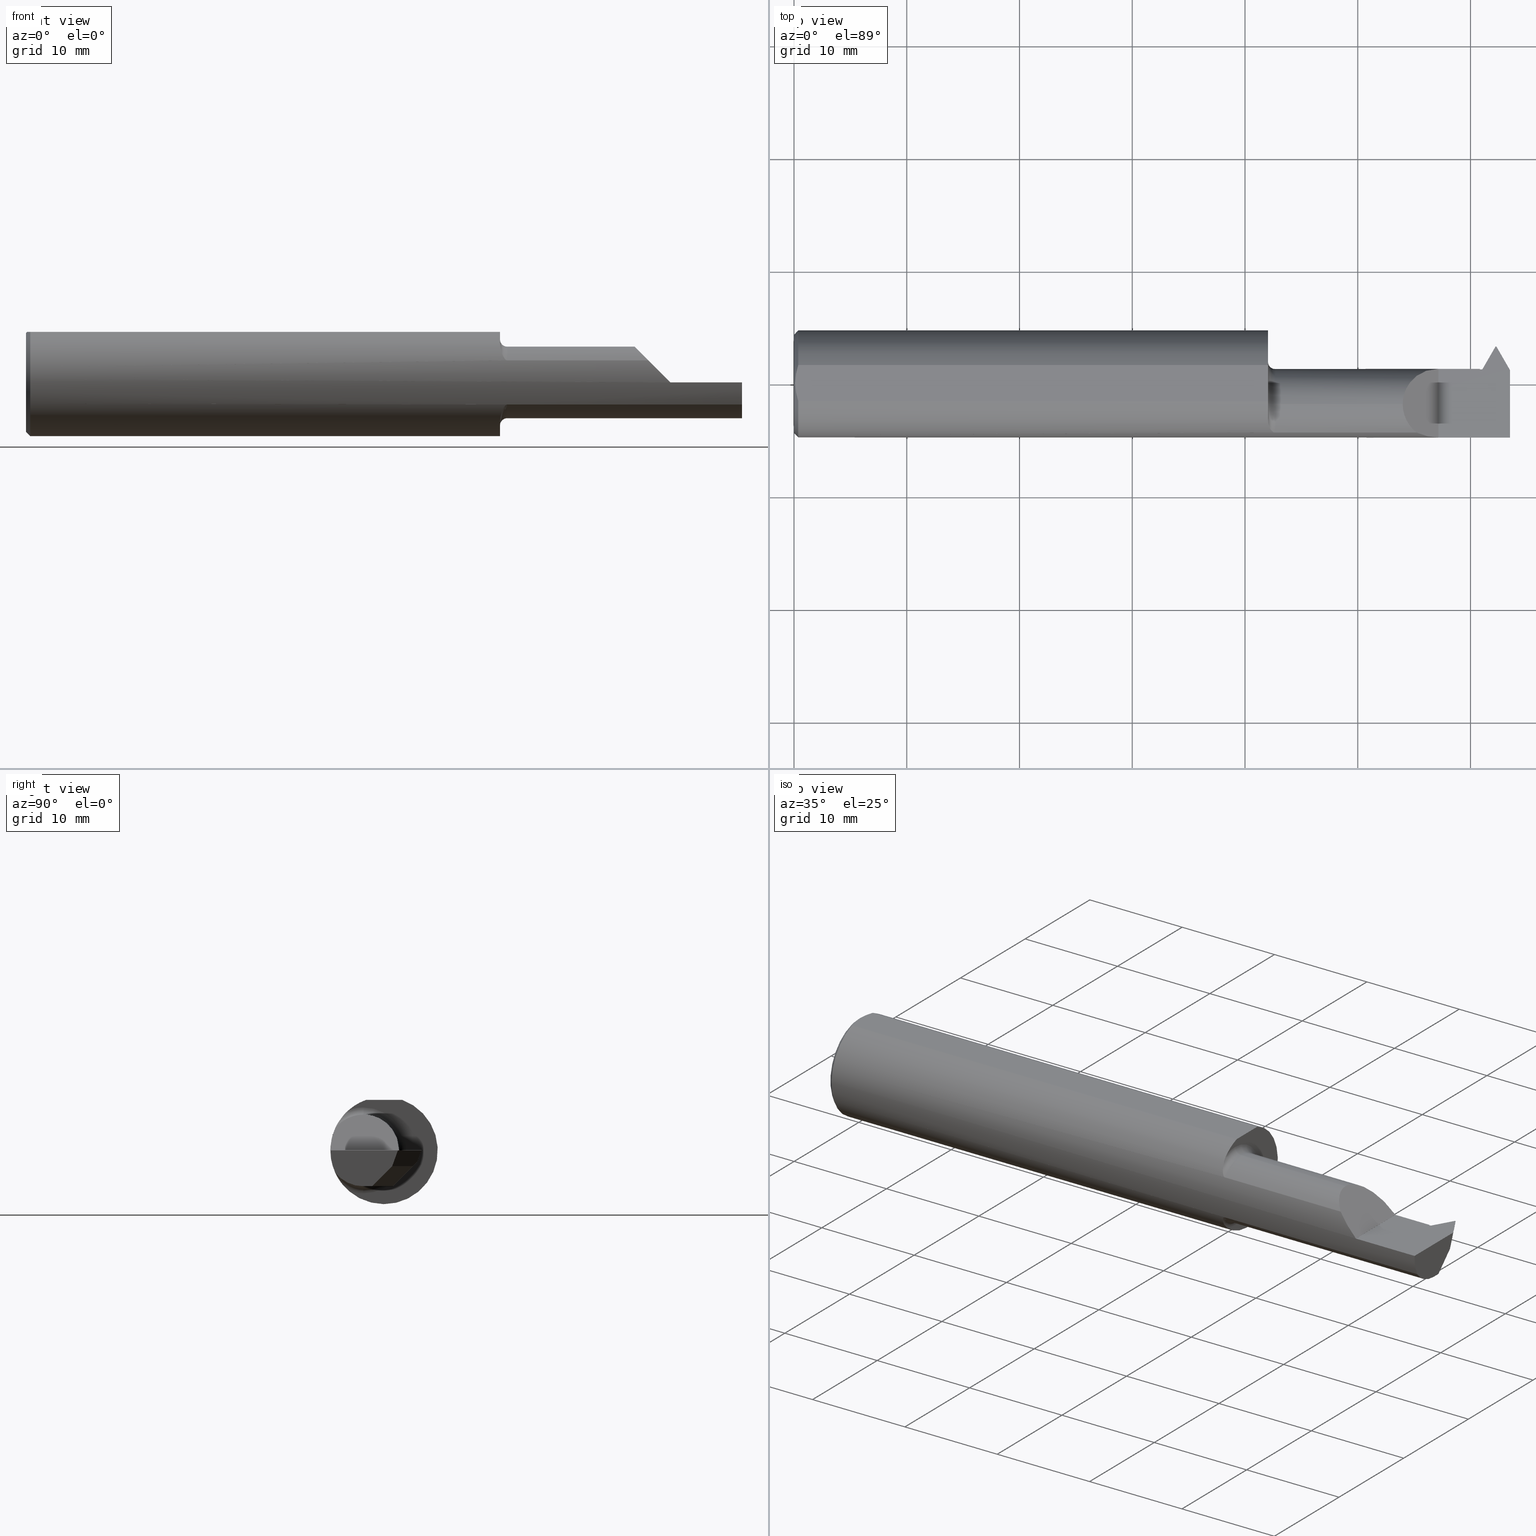
[diagram: canonical four-view strip — front | top / right | iso, engineering-drawing reading convention]
A machine part, canonical four-view strip (front | top / right | iso — engineering-drawing reading convention). The complete STEP part file that produces these views, byte-faithful:
ISO-10303-21;
HEADER;
FILE_DESCRIPTION (( 'STEP AP203' ),
    '1' );
FILE_NAME ('230412-TT320750.STEP',
    '2025-04-22T22:41:32',
    ( '' ),
    ( '' ),
    'SwSTEP 2.0',
    'SolidWorks 2024',
    '' );
FILE_SCHEMA (( 'CONFIG_CONTROL_DESIGN' ));
ENDSEC;

DATA;
#1 = CARTESIAN_POINT ( 'NONE',  ( 2.142479785539520787, -0.1466433954276125384, 0.1078702144604786056 ) ) ;
#2 = ADVANCED_FACE ( 'NONE', ( #607 ), #755, .T. ) ;
#3 = CARTESIAN_POINT ( 'NONE',  ( 1.680000000000000160, -0.07234999999999998377, 0.000000000000000000 ) ) ;
#4 = DIRECTION ( 'NONE',  ( -0.5000000000000038858, 0.000000000000000000, -0.8660254037844362651 ) ) ;
#5 = CARTESIAN_POINT ( 'NONE',  ( 2.443918426406540334, 0.1010911906293536638, -0.05499999999999957007 ) ) ;
#6 = CARTESIAN_POINT ( 'NONE',  ( 0.01155577088586097305, 0.05304926503900153634, 0.1763499999999999512 ) ) ;
#7 = DIRECTION ( 'NONE',  ( 0.000000000000000000, -1.000000000000000000, 0.000000000000000000 ) ) ;
#8 = DIRECTION ( 'NONE',  ( 0.000000000000000000, 0.000000000000000000, 1.000000000000000000 ) ) ;
#9 = CARTESIAN_POINT ( 'NONE',  ( 2.409370448767462314, 0.03851830851078916901, -0.05773402954892806194 ) ) ;
#10 = AXIS2_PLACEMENT_3D ( 'NONE', #221, #743, #160 ) ;
#11 = VECTOR ( 'NONE', #317, 39.37007874015748143 ) ;
#12 = DIRECTION ( 'NONE',  ( 0.5000000000000014433, -0.8660254037844377084, 0.000000000000000000 ) ) ;
#13 = EDGE_CURVE ( 'NONE', #139, #17, #613, .T. ) ;
#14 = ORIENTED_EDGE ( 'NONE', *, *, #167, .T. ) ;
#15 = CARTESIAN_POINT ( 'NONE',  ( 2.403311978464830023, 0.05064999999999998670, 0.000000000000000000 ) ) ;
#16 = CARTESIAN_POINT ( 'NONE',  ( 2.451000000000000068, 0.1332480762113532613, 0.000000000000000000 ) ) ;
#17 = VERTEX_POINT ( 'NONE', #983 ) ;
#18 = VERTEX_POINT ( 'NONE', #902 ) ;
#19 = EDGE_CURVE ( 'NONE', #954, #35, #969, .T. ) ;
#20 = CARTESIAN_POINT ( 'NONE',  ( 0.01500000000000079048, -0.06325108694718213631, 0.1763499999999999790 ) ) ;
#21 = DIRECTION ( 'NONE',  ( -0.000000000000000000, 0.000000000000000000, 1.000000000000000000 ) ) ;
#22 = ORIENTED_EDGE ( 'NONE', *, *, #360, .T. ) ;
#23 = ORIENTED_EDGE ( 'NONE', *, *, #50, .T. ) ;
#24 = CYLINDRICAL_SURFACE ( 'NONE', #946, 0.1873499999999999888 ) ;
#25 = CARTESIAN_POINT ( 'NONE',  ( 2.250000000000000000, -0.1873499999999999610, -6.429183357567478880E-17 ) ) ;
#26 = VECTOR ( 'NONE', #257, 39.37007874015748854 ) ;
#27 = AXIS2_PLACEMENT_3D ( 'NONE', #449, #535, #841 ) ;
#28 = PRODUCT_DEFINITION_FORMATION_WITH_SPECIFIED_SOURCE ( 'ANY', '', #292, .NOT_KNOWN. ) ;
#29 = ORIENTED_EDGE ( 'NONE', *, *, #660, .T. ) ;
#30 = AXIS2_PLACEMENT_3D ( 'NONE', #48, #417, #630 ) ;
#31 = DIRECTION ( 'NONE',  ( 0.000000000000000000, 0.000000000000000000, 1.000000000000000000 ) ) ;
#32 = DIRECTION ( 'NONE',  ( 1.000000000000000000, -0.000000000000000000, -0.000000000000000000 ) ) ;
#33 = EDGE_CURVE ( 'NONE', #105, #858, #958, .T. ) ;
#34 = CARTESIAN_POINT ( 'NONE',  ( 1.672402770576354669, -0.1687580686002391195, 0.08138221229323114314 ) ) ;
#35 = VERTEX_POINT ( 'NONE', #619 ) ;
#36 = ORIENTED_EDGE ( 'NONE', *, *, #197, .T. ) ;
#37 = DIRECTION ( 'NONE',  ( 0.000000000000000000, 0.000000000000000000, -1.000000000000000000 ) ) ;
#38 = DIRECTION ( 'NONE',  ( -1.000000000000000000, 6.098501035665834701E-15, 0.000000000000000000 ) ) ;
#39 = EDGE_CURVE ( 'NONE', #873, #972, #448, .T. ) ;
#40 = EDGE_LOOP ( 'NONE', ( #573, #963, #199, #263 ) ) ;
#41 = DIRECTION ( 'NONE',  ( 0.000000000000000000, 0.000000000000000000, -1.000000000000000000 ) ) ;
#42 = CARTESIAN_POINT ( 'NONE',  ( 1.678119196786478584, -0.1707639599170699130, 0.07706940050007769771 ) ) ;
#43 = ORIENTED_EDGE ( 'NONE', *, *, #346, .T. ) ;
#44 = VECTOR ( 'NONE', #938, 39.37007874015748143 ) ;
#45 = EDGE_CURVE ( 'NONE', #379, #492, #169, .T. ) ;
#46 = CC_DESIGN_APPROVAL ( #192, ( #295 ) ) ;
#47 = PLANE ( 'NONE',  #365 ) ;
#48 = CARTESIAN_POINT ( 'NONE',  ( 0.01500000000000079568, 0.000000000000000000, 0.000000000000000000 ) ) ;
#49 = ORIENTED_EDGE ( 'NONE', *, *, #173, .F. ) ;
#50 = EDGE_CURVE ( 'NONE', #661, #873, #680, .T. ) ;
#51 = CARTESIAN_POINT ( 'NONE',  ( 2.518819254367519633, -0.7177720014826116657, -1.003595231669350607 ) ) ;
#52 = APPROVAL_DATE_TIME ( #816, #555 ) ;
#53 = ORIENTED_EDGE ( 'NONE', *, *, #636, .T. ) ;
#54 = CARTESIAN_POINT ( 'NONE',  ( 2.385548931050876842, 0.04119893105087687329, -0.05226509597430407938 ) ) ;
#55 = EDGE_CURVE ( 'NONE', #271, #661, #456, .T. ) ;
#56 = ORIENTED_EDGE ( 'NONE', *, *, #844, .F. ) ;
#57 = AXIS2_PLACEMENT_3D ( 'NONE', #814, #236, #380 ) ;
#58 = ORIENTED_EDGE ( 'NONE', *, *, #590, .T. ) ;
#59 = FACE_OUTER_BOUND ( 'NONE', #251, .T. ) ;
#60 = DATE_AND_TIME ( #956, #182 ) ;
#61 = EDGE_CURVE ( 'NONE', #379, #255, #528, .T. ) ;
#62 = EDGE_LOOP ( 'NONE', ( #326, #336, #568, #502, #22 ) ) ;
#63 = LINE ( 'NONE', #812, #677 ) ;
#64 = ORIENTED_EDGE ( 'NONE', *, *, #19, .F. ) ;
#65 = CARTESIAN_POINT ( 'NONE',  ( 2.223443328839086242, -0.1873000608423838198, 0.02690667116091345970 ) ) ;
#66 = DATE_AND_TIME ( #886, #601 ) ;
#67 = EDGE_CURVE ( 'NONE', #513, #637, #572, .T. ) ;
#68 = CARTESIAN_POINT ( 'NONE',  ( 2.413734622005796027, 0.008361908784097661293, -0.09544939905744566355 ) ) ;
#69 = LINE ( 'NONE', #466, #724 ) ;
#70 = ORIENTED_EDGE ( 'NONE', *, *, #795, .F. ) ;
#71 = DIRECTION ( 'NONE',  ( -1.000000000000000000, 0.000000000000000000, 0.000000000000000000 ) ) ;
#72 = DIRECTION ( 'NONE',  ( -1.000000000000000000, -0.000000000000000000, -0.000000000000000000 ) ) ;
#73 = CARTESIAN_POINT ( 'NONE',  ( 2.451000000000000068, 0.1133568358907640350, -0.05500000000000006967 ) ) ;
#74 = CARTESIAN_POINT ( 'NONE',  ( 2.449500000000000899, 0.1306500000000008765, -6.429183357567480113E-17 ) ) ;
#75 = ADVANCED_FACE ( 'NONE', ( #760 ), #908, .T. ) ;
#76 = CARTESIAN_POINT ( 'NONE',  ( 1.655000000000000249, -0.07234999999999998377, 0.000000000000000000 ) ) ;
#77 = AXIS2_PLACEMENT_3D ( 'NONE', #921, #395, #21 ) ;
#78 = CARTESIAN_POINT ( 'NONE',  ( 1.655000000000000249, 0.000000000000000000, 0.000000000000000000 ) ) ;
#79 = AXIS2_PLACEMENT_3D ( 'NONE', #828, #739, #157 ) ;
#80 = CARTESIAN_POINT ( 'NONE',  ( 1.676412728618681180, -0.1703887611576448968, -0.07790427710188339849 ) ) ;
#81 = EDGE_CURVE ( 'NONE', #171, #637, #364, .T. ) ;
#82 = PLANE ( 'NONE',  #224 ) ;
#83 = CARTESIAN_POINT ( 'NONE',  ( 2.452750694374653317, 0.06227282877551456458, -0.1878647339454660448 ) ) ;
#84 = DIRECTION ( 'NONE',  ( 1.000000000000000000, 0.000000000000000000, 0.000000000000000000 ) ) ;
#85 = DIRECTION ( 'NONE',  ( -1.000000000000000000, -0.000000000000000000, -0.000000000000000000 ) ) ;
#86 = FACE_OUTER_BOUND ( 'NONE', #101, .T. ) ;
#87 = EDGE_CURVE ( 'NONE', #822, #957, #838, .T. ) ;
#88 = CARTESIAN_POINT ( 'NONE',  ( 2.411507999980803341, -0.007106926527362874245, -0.1070616118923673199 ) ) ;
#89 = ORIENTED_EDGE ( 'NONE', *, *, #879, .T. ) ;
#90 = ORIENTED_EDGE ( 'NONE', *, *, #338, .T. ) ;
#91 = DIRECTION ( 'NONE',  ( -1.000000000000000000, -0.000000000000000000, -0.000000000000000000 ) ) ;
#92 = CONICAL_SURFACE ( 'NONE', #424, 0.1873499999999999888, 0.7853981633974437271 ) ;
#93 = DIRECTION ( 'NONE',  ( 0.000000000000000000, 0.000000000000000000, -1.000000000000000000 ) ) ;
#94 = AXIS2_PLACEMENT_3D ( 'NONE', #76, #298, #761 ) ;
#95 = AXIS2_PLACEMENT_3D ( 'NONE', #667, #971, #301 ) ;
#96 = EDGE_CURVE ( 'NONE', #632, #786, #684, .T. ) ;
#97 = ORIENTED_EDGE ( 'NONE', *, *, #201, .T. ) ;
#98 = ORIENTED_EDGE ( 'NONE', *, *, #730, .T. ) ;
#99 = DIRECTION ( 'NONE',  ( 0.000000000000000000, 0.000000000000000000, 1.000000000000000000 ) ) ;
#100 = CARTESIAN_POINT ( 'NONE',  ( 2.250000000000000000, 0.05264950999903971612, 0.0003499999999991848933 ) ) ;
#101 = EDGE_LOOP ( 'NONE', ( #577, #90, #29, #363 ) ) ;
#102 = PLANE ( 'NONE',  #323 ) ;
#103 = CARTESIAN_POINT ( 'NONE',  ( 2.390128570000002117, 0.1160911906293539825, -0.03999999999999936939 ) ) ;
#104 = LENGTH_MEASURE_WITH_UNIT ( LENGTH_MEASURE( 0.02539999999999999897 ), #780 );
#105 = VERTEX_POINT ( 'NONE', #306 ) ;
#106 = ADVANCED_FACE ( 'NONE', ( #86 ), #825, .F. ) ;
#107 = DIRECTION ( 'NONE',  ( 0.000000000000000000, 0.000000000000000000, -1.000000000000000000 ) ) ;
#108 = LINE ( 'NONE', #103, #44 ) ;
#109 = AXIS2_PLACEMENT_3D ( 'NONE', #827, #84, #156 ) ;
#110 = MANIFOLD_SOLID_BREP ( 'Cut-Sweep1', #207 ) ;
#111 = AXIS2_PLACEMENT_3D ( 'NONE', #925, #247, #31 ) ;
#112 = LOCAL_TIME ( 15, 41, 32.00000000000000000, #133 ) ;
#113 = EDGE_LOOP ( 'NONE', ( #797, #36, #813, #918, #196, #880, #924, #245, #787, #713, #352, #694, #854 ) ) ;
#114 = ORIENTED_EDGE ( 'NONE', *, *, #39, .F. ) ;
#115 = PERSON ( 'UNSPECIFIED', 'UNSPECIFIED', 'UNSPECIFIED', ('UNSPECIFIED'), ('UNSPECIFIED'), ('UNSPECIFIED') ) ;
#116 = CC_DESIGN_PERSON_AND_ORGANIZATION_ASSIGNMENT ( #655, #598, ( #28 ) ) ;
#117 = CARTESIAN_POINT ( 'NONE',  ( 2.408768555666735978, 0.04119893105087686636, -0.05226509597430411408 ) ) ;
#118 = PLANE ( 'NONE',  #774 ) ;
#119 = VERTEX_POINT ( 'NONE', #381 ) ;
#120 = DIRECTION ( 'NONE',  ( 0.000000000000000000, 0.000000000000000000, 1.000000000000000000 ) ) ;
#121 = DIRECTION ( 'NONE',  ( 0.9947640934854952155, 0.01818544582510275842, 0.1005668328631428854 ) ) ;
#122 = EDGE_CURVE ( 'NONE', #726, #139, #609, .T. ) ;
#123 = EDGE_LOOP ( 'NONE', ( #152, #516, #643, #557, #462, #549, #213, #170, #439, #646, #359, #206, #281, #297 ) ) ;
#124 = DIRECTION ( 'NONE',  ( 0.000000000000000000, 0.000000000000000000, 1.000000000000000000 ) ) ;
#125 = CARTESIAN_POINT ( 'NONE',  ( 1.663471533398396041, -0.1602710687746327634, 0.09725558226055719402 ) ) ;
#126 = ORIENTED_EDGE ( 'NONE', *, *, #538, .T. ) ;
#127 = CIRCLE ( 'NONE', #532, 0.1250000000000000000 ) ;
#128 = AXIS2_PLACEMENT_3D ( 'NONE', #698, #976, #541 ) ;
#129 = CARTESIAN_POINT ( 'NONE',  ( 2.409054084941633977, -0.01574417682531606411, -0.1114485566650211257 ) ) ;
#130 = EDGE_LOOP ( 'NONE', ( #97, #740 ) ) ;
#131 = EDGE_CURVE ( 'NONE', #105, #35, #237, .T. ) ;
#132 = CARTESIAN_POINT ( 'NONE',  ( 2.452553377633872156, 0.1160911906293534690, -0.03999999999999984818 ) ) ;
#133 = COORDINATED_UNIVERSAL_TIME_OFFSET ( 8, 0, .BEHIND. ) ;
#134 = ORIENTED_EDGE ( 'NONE', *, *, #913, .F. ) ;
#135 = PRODUCT_DEFINITION_SHAPE ( 'NONE', 'NONE',  #295 ) ;
#136 = ADVANCED_BREP_SHAPE_REPRESENTATION ( '230412-TT320750', ( #110, #947 ), #901 ) ;
#137 = APPLICATION_CONTEXT ( 'configuration controlled 3d designs of mechanical parts and assemblies' ) ;
#138 = ADVANCED_FACE ( 'NONE', ( #981 ), #389, .T. ) ;
#139 = VERTEX_POINT ( 'NONE', #599 ) ;
#140 = DIRECTION ( 'NONE',  ( -1.000000000000000000, -0.000000000000000000, -0.000000000000000000 ) ) ;
#141 = PERSON_AND_ORGANIZATION_ROLE ( 'creator' ) ;
#142 = ORIENTED_EDGE ( 'NONE', *, *, #907, .F. ) ;
#143 = DIRECTION ( 'NONE',  ( 0.000000000000000000, -1.000000000000000000, 0.000000000000000000 ) ) ;
#144 = VECTOR ( 'NONE', #776, 39.37007874015748143 ) ;
#145 = CIRCLE ( 'NONE', #394, 0.1499999999999999944 ) ;
#146 = ORIENTED_EDGE ( 'NONE', *, *, #716, .F. ) ;
#147 = CARTESIAN_POINT ( 'NONE',  ( 1.680000000000000160, -0.07234999999999998377, 0.000000000000000000 ) ) ;
#148 = PRODUCT_RELATED_PRODUCT_CATEGORY ( 'detail', '', ( #292 ) ) ;
#149 = DIRECTION ( 'NONE',  ( -0.7071067811865481278, 0.000000000000000000, -0.7071067811865470176 ) ) ;
#150 = VERTEX_POINT ( 'NONE', #530 ) ;
#151 = CARTESIAN_POINT ( 'NONE',  ( 2.500000000000000000, 0.04278184266129586577, -0.01547243479515399492 ) ) ;
#152 = ORIENTED_EDGE ( 'NONE', *, *, #131, .F. ) ;
#153 = DIRECTION ( 'NONE',  ( -1.000000000000000000, -0.000000000000000000, -0.000000000000000000 ) ) ;
#154 = SECURITY_CLASSIFICATION_LEVEL ( 'unclassified' ) ;
#155 = EDGE_CURVE ( 'NONE', #615, #370, #764, .T. ) ;
#156 = DIRECTION ( 'NONE',  ( 0.000000000000000000, 0.000000000000000000, -1.000000000000000000 ) ) ;
#157 = DIRECTION ( 'NONE',  ( 0.000000000000000000, 0.000000000000000000, -1.000000000000000000 ) ) ;
#158 = UNCERTAINTY_MEASURE_WITH_UNIT (LENGTH_MEASURE( 1.000000000000000082E-05 ), #703, 'distance_accuracy_value', 'NONE');
#159 = CARTESIAN_POINT ( 'NONE',  ( 2.500000000000000000, 0.2999999999999999889, -6.429183357567480113E-17 ) ) ;
#160 = DIRECTION ( 'NONE',  ( 0.000000000000000000, 0.000000000000000000, -1.000000000000000000 ) ) ;
#161 = CARTESIAN_POINT ( 'NONE',  ( 2.451000000000000068, 0.1133568358907640350, -0.05500000000000006967 ) ) ;
#162 = AXIS2_PLACEMENT_3D ( 'NONE', #405, #415, #714 ) ;
#163 = LINE ( 'NONE', #159, #356 ) ;
#164 = VECTOR ( 'NONE', #337, 39.37007874015748854 ) ;
#165 = CIRCLE ( 'NONE', #931, 0.02500000000000000486 ) ;
#166 = DIRECTION ( 'NONE',  ( -0.5000000000000000000, -0.8660254037844385966, 1.952272811260131938E-16 ) ) ;
#167 = EDGE_CURVE ( 'NONE', #726, #461, #571, .T. ) ;
#168 = DIRECTION ( 'NONE',  ( -0.000000000000000000, 1.000000000000000000, -0.000000000000000000 ) ) ;
#169 = LINE ( 'NONE', #765, #550 ) ;
#170 = ORIENTED_EDGE ( 'NONE', *, *, #744, .F. ) ;
#171 = VERTEX_POINT ( 'NONE', #759 ) ;
#172 = LINE ( 'NONE', #193, #982 ) ;
#173 = EDGE_CURVE ( 'NONE', #876, #492, #375, .T. ) ;
#174 = DIRECTION ( 'NONE',  ( 1.000000000000000000, 0.000000000000000000, 0.000000000000000000 ) ) ;
#175 = CARTESIAN_POINT ( 'NONE',  ( 2.443918426406539890, 0.03109119062935249492, -0.1249999999999999584 ) ) ;
#176 = DIRECTION ( 'NONE',  ( 0.1751915364254256202, 0.1751915364254256202, 0.9688218882383889952 ) ) ;
#177 = ORIENTED_EDGE ( 'NONE', *, *, #757, .F. ) ;
#178 = LINE ( 'NONE', #701, #164 ) ;
#179 = CARTESIAN_POINT ( 'NONE',  ( 1.680000000000000160, -0.07234999999999996989, -0.1250000000000000000 ) ) ;
#180 = VECTOR ( 'NONE', #91, 39.37007874015748143 ) ;
#181 = CARTESIAN_POINT ( 'NONE',  ( 2.500000000000000000, -0.07234999999999999765, -0.1249999999999999861 ) ) ;
#182 = LOCAL_TIME ( 15, 41, 32.00000000000000000, #664 ) ;
#183 = EDGE_LOOP ( 'NONE', ( #357, #177, #418, #445 ) ) ;
#184 = CARTESIAN_POINT ( 'NONE',  ( 2.125349999999999184, -0.07234999999999998377, 0.1250000000000000000 ) ) ;
#185 = CARTESIAN_POINT ( 'NONE',  ( 0.01500000000000079568, 0.000000000000000000, -0.1873499999999999888 ) ) ;
#186 = ORIENTED_EDGE ( 'NONE', *, *, #33, .T. ) ;
#187 = DIRECTION ( 'NONE',  ( 1.000000000000000000, 0.000000000000000000, 0.000000000000000000 ) ) ;
#188 = CARTESIAN_POINT ( 'NONE',  ( 2.458081573593460245, 0.1010911906293531920, -0.05500000000000006273 ) ) ;
#189 = CARTESIAN_POINT ( 'NONE',  ( 1.661436535702075945, -0.1564726682735308738, 0.1032790376104839730 ) ) ;
#190 = ORIENTED_EDGE ( 'NONE', *, *, #272, .T. ) ;
#191 = VERTEX_POINT ( 'NONE', #526 ) ;
#192 = APPROVAL ( #522, 'UNSPECIFIED' ) ;
#193 = CARTESIAN_POINT ( 'NONE',  ( 2.443918426406540334, 0.1306500000000008488, -0.02544119062935267656 ) ) ;
#194 = CIRCLE ( 'NONE', #689, 0.1873499999999999888 ) ;
#195 = VECTOR ( 'NONE', #446, 39.37007874015748143 ) ;
#196 = ORIENTED_EDGE ( 'NONE', *, *, #338, .F. ) ;
#197 = EDGE_CURVE ( 'NONE', #171, #347, #318, .T. ) ;
#198 = FACE_OUTER_BOUND ( 'NONE', #40, .T. ) ;
#199 = ORIENTED_EDGE ( 'NONE', *, *, #239, .T. ) ;
#200 = DIRECTION ( 'NONE',  ( 0.9947640934854952155, 0.01818544582510275842, 0.1005668328631428854 ) ) ;
#201 = EDGE_CURVE ( 'NONE', #968, #421, #614, .T. ) ;
#202 = CARTESIAN_POINT ( 'NONE',  ( 1.673558876738254320, -0.1693773766851885965, 0.08007975305238296260 ) ) ;
#203 = EDGE_LOOP ( 'NONE', ( #485, #58, #625, #651, #808, #366 ) ) ;
#204 = DIRECTION ( 'NONE',  ( -0.09000871797897343207, 0.6219594709071071259, 0.7778591435708221979 ) ) ;
#205 = COORDINATED_UNIVERSAL_TIME_OFFSET ( 8, 0, .BEHIND. ) ;
#206 = ORIENTED_EDGE ( 'NONE', *, *, #122, .T. ) ;
#207 = CLOSED_SHELL ( 'NONE', ( #246, #817, #894, #647, #420, #2, #512, #940, #865, #871, #970, #495, #545, #671, #700, #605, #574, #260, #106, #397, #287, #486, #595, #465, #416, #75, #527, #138 ) ) ;
#208 = AXIS2_PLACEMENT_3D ( 'NONE', #638, #85, #8 ) ;
#209 = CARTESIAN_POINT ( 'NONE',  ( 2.418416935535163681, -2.341620387771038647, 0.2831811820837145111 ) ) ;
#210 = COORDINATED_UNIVERSAL_TIME_OFFSET ( 8, 0, .BEHIND. ) ;
#211 = ORIENTED_EDGE ( 'NONE', *, *, #81, .T. ) ;
#212 = EDGE_CURVE ( 'NONE', #593, #733, #642, .T. ) ;
#213 = ORIENTED_EDGE ( 'NONE', *, *, #952, .T. ) ;
#214 = FACE_OUTER_BOUND ( 'NONE', #930, .T. ) ;
#215 = PERSON_AND_ORGANIZATION ( #115, #291 ) ;
#216 = ORIENTED_EDGE ( 'NONE', *, *, #302, .F. ) ;
#217 = CC_DESIGN_PERSON_AND_ORGANIZATION_ASSIGNMENT ( #362, #588, ( #295 ) ) ;
#218 = EDGE_LOOP ( 'NONE', ( #941, #43, #781 ) ) ;
#219 = LINE ( 'NONE', #227, #195 ) ;
#220 = COORDINATED_UNIVERSAL_TIME_OFFSET ( 8, 0, .BEHIND. ) ;
#221 = CARTESIAN_POINT ( 'NONE',  ( 2.409054084941633977, 0.1283568358907640483, -0.05500000000000006967 ) ) ;
#222 = ORIENTED_EDGE ( 'NONE', *, *, #665, .F. ) ;
#223 = CARTESIAN_POINT ( 'NONE',  ( 0.000000000000000000, 0.000000000000000000, 0.000000000000000000 ) ) ;
#224 = AXIS2_PLACEMENT_3D ( 'NONE', #521, #965, #71 ) ;
#225 = CIRCLE ( 'NONE', #30, 0.1873499999999999888 ) ;
#226 = ORIENTED_EDGE ( 'NONE', *, *, #826, .F. ) ;
#227 = CARTESIAN_POINT ( 'NONE',  ( 2.395000000000000018, 0.05064999999999998670, 0.000000000000000000 ) ) ;
#228 = APPROVAL_ROLE ( '' ) ;
#229 = EDGE_CURVE ( 'NONE', #954, #139, #499, .T. ) ;
#230 = FACE_OUTER_BOUND ( 'NONE', #666, .T. ) ;
#231 = CARTESIAN_POINT ( 'NONE',  ( 1.669299808151414544, -0.1667638676707169920, -0.08543442767820320916 ) ) ;
#232 = LINE ( 'NONE', #511, #310 ) ;
#233 = CARTESIAN_POINT ( 'NONE',  ( 2.500000000000000000, -0.1873499999999998222, -6.429183357567480113E-17 ) ) ;
#234 = CARTESIAN_POINT ( 'NONE',  ( 2.500000000000000000, 0.06325108694718213631, 0.1763499999999999790 ) ) ;
#235 = DIRECTION ( 'NONE',  ( -0.2521791579305382447, 0.6842534882283957121, 0.6842534882283884956 ) ) ;
#236 = DIRECTION ( 'NONE',  ( -0.7745966692414825161, 0.4472135954999573171, -0.4472135954999603147 ) ) ;
#237 = LINE ( 'NONE', #243, #736 ) ;
#238 = CARTESIAN_POINT ( 'NONE',  ( 2.418197582037931781, -0.07235000000000001152, -0.1250000000000000000 ) ) ;
#239 = EDGE_CURVE ( 'NONE', #119, #820, #459, .T. ) ;
#240 = VECTOR ( 'NONE', #554, 39.37007874015748854 ) ;
#241 = LINE ( 'NONE', #534, #11 ) ;
#242 = VECTOR ( 'NONE', #343, 39.37007874015748143 ) ;
#243 = CARTESIAN_POINT ( 'NONE',  ( 2.027500000000000302, -0.1707639599170698019, -0.07706940050007766996 ) ) ;
#244 = CARTESIAN_POINT ( 'NONE',  ( 1.656555970616603979, -0.1439812988895032841, -0.1207222593517345427 ) ) ;
#245 = ORIENTED_EDGE ( 'NONE', *, *, #427, .F. ) ;
#246 = ADVANCED_FACE ( 'NONE', ( #230 ), #451, .F. ) ;
#247 = DIRECTION ( 'NONE',  ( -1.000000000000000000, -0.000000000000000000, -0.000000000000000000 ) ) ;
#248 = DIRECTION ( 'NONE',  ( 0.000000000000000000, 0.000000000000000000, -1.000000000000000000 ) ) ;
#249 = FACE_OUTER_BOUND ( 'NONE', #586, .T. ) ;
#250 = CARTESIAN_POINT ( 'NONE',  ( 2.413734622005796027, 0.008361908784097661293, -0.09544939905744566355 ) ) ;
#251 = EDGE_LOOP ( 'NONE', ( #745, #562, #883, #300 ) ) ;
#252 = LINE ( 'NONE', #932, #367 ) ;
#253 = FACE_OUTER_BOUND ( 'NONE', #803, .T. ) ;
#254 = DIRECTION ( 'NONE',  ( 0.000000000000000000, -1.000000000000000000, 0.000000000000000000 ) ) ;
#255 = VERTEX_POINT ( 'NONE', #752 ) ;
#256 = CARTESIAN_POINT ( 'NONE',  ( 2.500000000000000000, -0.06325108694718213631, 0.1763499999999999790 ) ) ;
#257 = DIRECTION ( 'NONE',  ( 0.5000000000000012212, -0.8660254037844377084, 0.000000000000000000 ) ) ;
#258 = VECTOR ( 'NONE', #12, 39.37007874015748854 ) ;
#259 = CC_DESIGN_SECURITY_CLASSIFICATION ( #754, ( #28 ) ) ;
#260 = ADVANCED_FACE ( 'NONE', ( #253 ), #710, .F. ) ;
#261 = CARTESIAN_POINT ( 'NONE',  ( 0.000000000000000000, 0.000000000000000000, -0.1723499999999993371 ) ) ;
#262 = VECTOR ( 'NONE', #444, 39.37007874015748854 ) ;
#263 = ORIENTED_EDGE ( 'NONE', *, *, #919, .F. ) ;
#264 = CARTESIAN_POINT ( 'NONE',  ( 2.173280599499920918, -0.1707639599170693578, 0.07706940050007844711 ) ) ;
#265 = CARTESIAN_POINT ( 'NONE',  ( 2.125349999999999184, 0.0007108448279458398980, 0.1250000000000000278 ) ) ;
#266 = ORIENTED_EDGE ( 'NONE', *, *, #852, .T. ) ;
#267 = ORIENTED_EDGE ( 'NONE', *, *, #744, .T. ) ;
#268 = FACE_OUTER_BOUND ( 'NONE', #563, .T. ) ;
#269 = DIRECTION ( 'NONE',  ( 0.000000000000000000, 0.000000000000000000, -1.000000000000000000 ) ) ;
#270 = CARTESIAN_POINT ( 'NONE',  ( 1.658207941101452976, -0.1482224317505124456, 0.1148057762150967581 ) ) ;
#271 = VERTEX_POINT ( 'NONE', #411 ) ;
#272 = EDGE_CURVE ( 'NONE', #119, #620, #856, .T. ) ;
#273 = CARTESIAN_POINT ( 'NONE',  ( 0.004991821518933527678, -0.02143118227845419027, 0.1763500000000000068 ) ) ;
#274 = PLANE ( 'NONE',  #584 ) ;
#275 = VECTOR ( 'NONE', #314, 39.37007874015748143 ) ;
#276 = VECTOR ( 'NONE', #855, 39.37007874015748143 ) ;
#277 = EDGE_LOOP ( 'NONE', ( #289, #372, #330, #484 ) ) ;
#278 = EDGE_CURVE ( 'NONE', #18, #620, #559, .T. ) ;
#279 = CARTESIAN_POINT ( 'NONE',  ( 1.655000000000000249, -0.07234999999999998377, 0.000000000000000000 ) ) ;
#280 = PERSON_AND_ORGANIZATION ( #115, #291 ) ;
#281 = ORIENTED_EDGE ( 'NONE', *, *, #229, .F. ) ;
#282 = CC_DESIGN_PERSON_AND_ORGANIZATION_ASSIGNMENT ( #719, #949, ( #292 ) ) ;
#283 = FACE_OUTER_BOUND ( 'NONE', #62, .T. ) ;
#284 = EDGE_LOOP ( 'NONE', ( #98, #699, #134, #859, #433, #186 ) ) ;
#285 = PLANE ( 'NONE',  #801 ) ;
#286 = CALENDAR_DATE ( 2025, 22, 4 ) ;
#287 = ADVANCED_FACE ( 'NONE', ( #401 ), #92, .T. ) ;
#288 = VECTOR ( 'NONE', #176, 39.37007874015748143 ) ;
#289 = ORIENTED_EDGE ( 'NONE', *, *, #96, .T. ) ;
#290 = VECTOR ( 'NONE', #860, 39.37007874015748143 ) ;
#291 = ORGANIZATION ( 'UNSPECIFIED', 'UNSPECIFIED', '' ) ;
#292 = PRODUCT ( '230412-TT320750', '230412-TT320750', '', ( #943 ) ) ;
#293 = DIRECTION ( 'NONE',  ( 0.1005834662396456747, 0.000000000000000000, -0.9949286237309780123 ) ) ;
#294 = PERSON_AND_ORGANIZATION ( #115, #291 ) ;
#295 = PRODUCT_DEFINITION ( 'UNKNOWN', '', #28, #750 ) ;
#296 = ORIENTED_EDGE ( 'NONE', *, *, #879, .F. ) ;
#297 = ORIENTED_EDGE ( 'NONE', *, *, #19, .T. ) ;
#298 = DIRECTION ( 'NONE',  ( -1.000000000000000000, -0.000000000000000000, -0.000000000000000000 ) ) ;
#299 = PERSON_AND_ORGANIZATION ( #115, #291 ) ;
#300 = ORIENTED_EDGE ( 'NONE', *, *, #435, .T. ) ;
#301 = DIRECTION ( 'NONE',  ( 0.000000000000000000, 0.000000000000000000, -1.000000000000000000 ) ) ;
#302 = EDGE_CURVE ( 'NONE', #876, #806, #328, .T. ) ;
#303 = ORIENTED_EDGE ( 'NONE', *, *, #67, .F. ) ;
#304 = CARTESIAN_POINT ( 'NONE',  ( 2.403311978464830023, 0.05064999999999998670, 0.000000000000000000 ) ) ;
#305 = CARTESIAN_POINT ( 'NONE',  ( 2.449249114193978727, 0.06222061565550776607, -0.1880081883136840437 ) ) ;
#306 = CARTESIAN_POINT ( 'NONE',  ( 2.500000000000000000, -0.1707639599170698019, -0.07706940050007768384 ) ) ;
#307 =( BOUNDED_CURVE ( )  B_SPLINE_CURVE ( 3, ( #100, #339, #265, #851 ),
 .UNSPECIFIED., .F., .F. ) 
 B_SPLINE_CURVE_WITH_KNOTS ( ( 4, 4 ),
 ( 4.715188984043361842, 6.283185307179586232 ),
 .UNSPECIFIED. ) 
 CURVE ( )  GEOMETRIC_REPRESENTATION_ITEM ( )  RATIONAL_B_SPLINE_CURVE ( ( 1.000000000000000000, 0.8053973591226777362, 0.8053973591226777362, 1.000000000000000000 ) ) 
 REPRESENTATION_ITEM ( '' )  );
#308 = PLANE ( 'NONE',  #500 ) ;
#309 = AXIS2_PLACEMENT_3D ( 'NONE', #652, #569, #41 ) ;
#310 = VECTOR ( 'NONE', #821, 39.37007874015748143 ) ;
#311 = ORIENTED_EDGE ( 'NONE', *, *, #506, .F. ) ;
#312 = CARTESIAN_POINT ( 'NONE',  ( 2.399999999999999911, 0.1306500000000009043, -0.02544119062935263145 ) ) ;
#313 = CARTESIAN_POINT ( 'NONE',  ( 2.409054084941633977, 0.03909855666502076027, -0.05660582317468466906 ) ) ;
#314 = DIRECTION ( 'NONE',  ( -1.000000000000000000, -0.000000000000000000, -0.000000000000000000 ) ) ;
#315 = CARTESIAN_POINT ( 'NONE',  ( 2.413734622005796027, 0.008361908784097661293, -0.09544939905744566355 ) ) ;
#316 = CARTESIAN_POINT ( 'NONE',  ( 2.409054084941633977, -0.01574417682531606411, -0.1114485566650211257 ) ) ;
#317 = DIRECTION ( 'NONE',  ( 1.000000000000000000, 0.000000000000000000, 0.000000000000000000 ) ) ;
#318 = LINE ( 'NONE', #669, #835 ) ;
#319 = EDGE_CURVE ( 'NONE', #968, #150, #933, .T. ) ;
#320 = CARTESIAN_POINT ( 'NONE',  ( 1.655000000000000249, -0.1232518659295093050, -0.1410992560040422727 ) ) ;
#321 = VECTOR ( 'NONE', #419, 39.37007874015748854 ) ;
#322 = CARTESIAN_POINT ( 'NONE',  ( 1.680000000000000160, -0.07234999999999998377, 0.000000000000000000 ) ) ;
#323 = AXIS2_PLACEMENT_3D ( 'NONE', #15, #920, #628 ) ;
#324 = DIRECTION ( 'NONE',  ( -1.000000000000000000, -0.000000000000000000, -0.000000000000000000 ) ) ;
#325 = CARTESIAN_POINT ( 'NONE',  ( 1.680000000000000160, -0.07234999999999998377, -0.1499999999999999944 ) ) ;
#326 = ORIENTED_EDGE ( 'NONE', *, *, #197, .F. ) ;
#327 = CARTESIAN_POINT ( 'NONE',  ( 1.680000000000000160, -0.07234999999999998377, 0.000000000000000000 ) ) ;
#328 = LINE ( 'NONE', #16, #26 ) ;
#329 = LINE ( 'NONE', #335, #341 ) ;
#330 = ORIENTED_EDGE ( 'NONE', *, *, #61, .T. ) ;
#331 = EDGE_LOOP ( 'NONE', ( #296, #348, #520, #470, #656 ) ) ;
#332 = EDGE_CURVE ( 'NONE', #255, #632, #629, .T. ) ;
#333 = DIRECTION ( 'NONE',  ( 1.000000000000000000, 0.000000000000000000, 0.000000000000000000 ) ) ;
#334 = CARTESIAN_POINT ( 'NONE',  ( 2.442122729577442364, 0.09621881406503261791, -0.05987237656432055355 ) ) ;
#335 = CARTESIAN_POINT ( 'NONE',  ( 2.250000000000000000, 0.2999999999999999889, -6.429183357567480113E-17 ) ) ;
#336 = ORIENTED_EDGE ( 'NONE', *, *, #410, .F. ) ;
#337 = DIRECTION ( 'NONE',  ( 0.000000000000000000, -0.7071067811865497932, -0.7071067811865451302 ) ) ;
#338 = EDGE_CURVE ( 'NONE', #507, #746, #307, .T. ) ;
#339 = CARTESIAN_POINT ( 'NONE',  ( 2.176939441571127176, 0.05244493963352191840, 0.07341055842887181382 ) ) ;
#340 = VECTOR ( 'NONE', #748, 39.37007874015748143 ) ;
#341 = VECTOR ( 'NONE', #770, 39.37007874015748143 ) ;
#342 = ORIENTED_EDGE ( 'NONE', *, *, #45, .T. ) ;
#343 = DIRECTION ( 'NONE',  ( -1.000000000000000000, -0.000000000000000000, -0.000000000000000000 ) ) ;
#344 = DIRECTION ( 'NONE',  ( -1.000000000000000000, -0.000000000000000000, -0.000000000000000000 ) ) ;
#345 = CARTESIAN_POINT ( 'NONE',  ( 1.667679829691370630, -0.1652024577544480843, 0.08842811073770914798 ) ) ;
#346 = EDGE_CURVE ( 'NONE', #593, #271, #567, .T. ) ;
#347 = VERTEX_POINT ( 'NONE', #179 ) ;
#348 = ORIENTED_EDGE ( 'NONE', *, *, #201, .F. ) ;
#349 = LINE ( 'NONE', #540, #180 ) ;
#350 = DIRECTION ( 'NONE',  ( 1.000000000000000000, 0.000000000000000000, 0.000000000000000000 ) ) ;
#351 = EDGE_CURVE ( 'NONE', #492, #119, #108, .T. ) ;
#352 = ORIENTED_EDGE ( 'NONE', *, *, #212, .T. ) ;
#353 = DIRECTION ( 'NONE',  ( -1.000000000000000000, -0.000000000000000000, -0.000000000000000000 ) ) ;
#354 = CARTESIAN_POINT ( 'NONE',  ( 1.676406265684706742, -0.1703893073657099244, 0.07790344355110689900 ) ) ;
#355 = AXIS2_PLACEMENT_3D ( 'NONE', #475, #623, #248 ) ;
#356 = VECTOR ( 'NONE', #168, 39.37007874015748143 ) ;
#357 = ORIENTED_EDGE ( 'NONE', *, *, #501, .F. ) ;
#358 = DIRECTION ( 'NONE',  ( -0.9840406976462907629, 0.000000000000000000, 0.1779435454738421407 ) ) ;
#359 = ORIENTED_EDGE ( 'NONE', *, *, #962, .T. ) ;
#360 = EDGE_CURVE ( 'NONE', #35, #347, #788, .T. ) ;
#361 = DIRECTION ( 'NONE',  ( 1.000000000000000000, 0.000000000000000000, 0.000000000000000000 ) ) ;
#362 = PERSON_AND_ORGANIZATION ( #115, #291 ) ;
#363 = ORIENTED_EDGE ( 'NONE', *, *, #621, .F. ) ;
#364 =( BOUNDED_CURVE ( )  B_SPLINE_CURVE ( 3, ( #238, #531, #468, #68 ),
 .UNSPECIFIED., .F., .F. ) 
 B_SPLINE_CURVE_WITH_KNOTS ( ( 4, 4 ),
 ( 3.320488901919211866, 4.022422357086396616 ),
 .UNSPECIFIED. ) 
 CURVE ( )  GEOMETRIC_REPRESENTATION_ITEM ( )  RATIONAL_B_SPLINE_CURVE ( ( 1.000000000000000000, 0.9593605234527340375, 0.9593605234527340375, 1.000000000000000000 ) ) 
 REPRESENTATION_ITEM ( '' )  );
#365 = AXIS2_PLACEMENT_3D ( 'NONE', #885, #358, #809 ) ;
#366 = ORIENTED_EDGE ( 'NONE', *, *, #452, .T. ) ;
#367 = VECTOR ( 'NONE', #915, 39.37007874015748143 ) ;
#368 = ORIENTED_EDGE ( 'NONE', *, *, #319, .F. ) ;
#369 = EDGE_CURVE ( 'NONE', #733, #513, #600, .T. ) ;
#370 = VERTEX_POINT ( 'NONE', #25 ) ;
#371 = FACE_OUTER_BOUND ( 'NONE', #480, .T. ) ;
#372 = ORIENTED_EDGE ( 'NONE', *, *, #720, .T. ) ;
#373 = CARTESIAN_POINT ( 'NONE',  ( 2.250000000000000000, 0.2999999999999999889, -6.429183357567480113E-17 ) ) ;
#374 = APPROVAL_DATE_TIME ( #728, #641 ) ;
#375 = LINE ( 'NONE', #83, #945 ) ;
#376 = DIRECTION ( 'NONE',  ( 1.000000000000000000, -0.000000000000000000, -0.000000000000000000 ) ) ;
#377 = EDGE_CURVE ( 'NONE', #734, #777, #127, .T. ) ;
#378 = LINE ( 'NONE', #560, #453 ) ;
#379 = VERTEX_POINT ( 'NONE', #188 ) ;
#380 = DIRECTION ( 'NONE',  ( -0.5000000000000023315, 0.000000000000000000, 0.8660254037844371533 ) ) ;
#381 = CARTESIAN_POINT ( 'NONE',  ( 2.449446622366127979, 0.1160911906293534274, -0.03999999999999993144 ) ) ;
#382 = VECTOR ( 'NONE', #482, 39.37007874015748854 ) ;
#383 = CARTESIAN_POINT ( 'NONE',  ( 2.125349999999999628, -0.1114715001235029451, 0.1250000000000000278 ) ) ;
#384 = CARTESIAN_POINT ( 'NONE',  ( 1.680000000000000160, -0.1707639599170698019, -0.07706940050007766996 ) ) ;
#385 = CYLINDRICAL_SURFACE ( 'NONE', #94, 0.1250000000000000000 ) ;
#386 = EDGE_CURVE ( 'NONE', #662, #150, #194, .T. ) ;
#387 = CARTESIAN_POINT ( 'NONE',  ( 1.678132574457247950, -0.1707639599170699130, -0.07706940050007766996 ) ) ;
#388 = DIRECTION ( 'NONE',  ( -0.1021978390768668865, 0.1770118497048815409, 0.9788883525469466163 ) ) ;
#389 = PLANE ( 'NONE',  #10 ) ;
#390 = CARTESIAN_POINT ( 'NONE',  ( 2.413075199203178922, 0.0009645913569521091411, -0.1017045626867887076 ) ) ;
#391 = EDGE_LOOP ( 'NONE', ( #53, #216, #849, #863, #114, #767, #589, #56, #596 ) ) ;
#392 = VECTOR ( 'NONE', #166, 39.37007874015748854 ) ;
#393 = FACE_OUTER_BOUND ( 'NONE', #183, .T. ) ;
#394 = AXIS2_PLACEMENT_3D ( 'NONE', #681, #153, #673 ) ;
#395 = DIRECTION ( 'NONE',  ( -1.000000000000000000, 0.000000000000000000, -0.000000000000000000 ) ) ;
#396 = DIRECTION ( 'NONE',  ( -0.8522042425194489290, -0.4920203488231467137, 0.1779435454738421407 ) ) ;
#397 = ADVANCED_FACE ( 'NONE', ( #565 ), #867, .F. ) ;
#398 = ORIENTED_EDGE ( 'NONE', *, *, #167, .F. ) ;
#399 = EDGE_LOOP ( 'NONE', ( #226, #505, #211 ) ) ;
#400 = DIRECTION ( 'NONE',  ( -0.000000000000000000, 1.000000000000000000, -2.417245856451656750E-16 ) ) ;
#401 = FACE_OUTER_BOUND ( 'NONE', #331, .T. ) ;
#402 = ORIENTED_EDGE ( 'NONE', *, *, #962, .F. ) ;
#403 = EDGE_LOOP ( 'NONE', ( #267, #266, #126, #432, #800, #895 ) ) ;
#404 = LINE ( 'NONE', #708, #583 ) ;
#405 = CARTESIAN_POINT ( 'NONE',  ( 1.680000000000000160, -0.07234999999999998377, 0.000000000000000000 ) ) ;
#406 = DIRECTION ( 'NONE',  ( -0.000000000000000000, 2.417245856451656257E-16, 1.000000000000000000 ) ) ;
#407 = VERTEX_POINT ( 'NONE', #488 ) ;
#408 = CARTESIAN_POINT ( 'NONE',  ( 2.500000000000000000, 0.000000000000000000, 0.000000000000000000 ) ) ;
#409 = VECTOR ( 'NONE', #900, 39.37007874015748854 ) ;
#410 = EDGE_CURVE ( 'NONE', #858, #171, #349, .T. ) ;
#411 = CARTESIAN_POINT ( 'NONE',  ( 2.408768555666735978, 0.04119893105087686636, -0.05226509597430411408 ) ) ;
#412 = CIRCLE ( 'NONE', #533, 0.1250000000000000000 ) ;
#413 = ORIENTED_EDGE ( 'NONE', *, *, #687, .F. ) ;
#414 = ORIENTED_EDGE ( 'NONE', *, *, #762, .F. ) ;
#415 = DIRECTION ( 'NONE',  ( 1.000000000000000000, 0.000000000000000000, 0.000000000000000000 ) ) ;
#416 = ADVANCED_FACE ( 'NONE', ( #657 ), #47, .F. ) ;
#417 = DIRECTION ( 'NONE',  ( 1.000000000000000000, -0.000000000000000000, -0.000000000000000000 ) ) ;
#418 = ORIENTED_EDGE ( 'NONE', *, *, #839, .T. ) ;
#419 = DIRECTION ( 'NONE',  ( -0.01827811026638583719, 0.9998329413882549588, -2.416947091259837578E-16 ) ) ;
#420 = ADVANCED_FACE ( 'NONE', ( #59 ), #422, .T. ) ;
#421 = VERTEX_POINT ( 'NONE', #578 ) ;
#422 = CYLINDRICAL_SURFACE ( 'NONE', #722, 0.1250000000000000000 ) ;
#423 = CARTESIAN_POINT ( 'NONE',  ( 1.655000000000000249, -0.1232518659295093050, 0.1410992560040422727 ) ) ;
#424 = AXIS2_PLACEMENT_3D ( 'NONE', #784, #32, #693 ) ;
#425 = CIRCLE ( 'NONE', #208, 0.1250000000000000000 ) ;
#426 = VERTEX_POINT ( 'NONE', #960 ) ;
#427 = EDGE_CURVE ( 'NONE', #661, #510, #763, .T. ) ;
#428 = LINE ( 'NONE', #497, #321 ) ;
#429 = APPROVAL_ROLE ( '' ) ;
#430 = ORIENTED_EDGE ( 'NONE', *, *, #55, .T. ) ;
#431 = FACE_OUTER_BOUND ( 'NONE', #218, .T. ) ;
#432 = ORIENTED_EDGE ( 'NONE', *, *, #506, .T. ) ;
#433 = ORIENTED_EDGE ( 'NONE', *, *, #683, .T. ) ;
#434 = LINE ( 'NONE', #51, #675 ) ;
#435 = EDGE_CURVE ( 'NONE', #777, #729, #735, .T. ) ;
#436 = AXIS2_PLACEMENT_3D ( 'NONE', #834, #149, #682 ) ;
#437 = ORIENTED_EDGE ( 'NONE', *, *, #665, .T. ) ;
#438 = DIRECTION ( 'NONE',  ( -0.09000871797897343207, 0.6219594709071071259, 0.7778591435708221979 ) ) ;
#439 = ORIENTED_EDGE ( 'NONE', *, *, #687, .T. ) ;
#440 = FACE_OUTER_BOUND ( 'NONE', #653, .T. ) ;
#441 = CARTESIAN_POINT ( 'NONE',  ( 0.005015674426658929021, 0.02160712711892616780, 0.1763499999999999790 ) ) ;
#442 = EDGE_CURVE ( 'NONE', #593, #18, #434, .T. ) ;
#443 = ORIENTED_EDGE ( 'NONE', *, *, #720, .F. ) ;
#444 = DIRECTION ( 'NONE',  ( 0.000000000000000000, -0.3401001459858867815, -0.9403892229818345827 ) ) ;
#445 = ORIENTED_EDGE ( 'NONE', *, *, #538, .F. ) ;
#446 = DIRECTION ( 'NONE',  ( -0.000000000000000000, -1.000000000000000000, -0.000000000000000000 ) ) ;
#447 = SHAPE_DEFINITION_REPRESENTATION ( #135, #136 ) ;
#448 = LINE ( 'NONE', #542, #658 ) ;
#449 = CARTESIAN_POINT ( 'NONE',  ( 0.000000000000000000, 0.000000000000000000, 0.000000000000000000 ) ) ;
#450 = ORIENTED_EDGE ( 'NONE', *, *, #627, .T. ) ;
#451 = TOROIDAL_SURFACE ( 'NONE', #515, 0.1499999999999999944, 0.02500000000000000139 ) ;
#452 = EDGE_CURVE ( 'NONE', #171, #957, #428, .T. ) ;
#453 = VECTOR ( 'NONE', #38, 39.37007874015748143 ) ;
#454 = CARTESIAN_POINT ( 'NONE',  ( 2.409370448767462314, 0.03851830851078916901, -0.05773402954892806194 ) ) ;
#455 = CARTESIAN_POINT ( 'NONE',  ( 0.003999999999998503017, 1.478949923165211460E-16, 0.1763499999999999790 ) ) ;
#456 = LINE ( 'NONE', #917, #275 ) ;
#457 = EDGE_CURVE ( 'NONE', #461, #662, #950, .T. ) ;
#458 = PLANE ( 'NONE',  #57 ) ;
#459 = LINE ( 'NONE', #305, #409 ) ;
#460 = CARTESIAN_POINT ( 'NONE',  ( 1.663464385422889436, -0.1602677418389839570, -0.09726402398944666849 ) ) ;
#461 = VERTEX_POINT ( 'NONE', #955 ) ;
#462 = ORIENTED_EDGE ( 'NONE', *, *, #621, .T. ) ;
#463 = DIRECTION ( 'NONE',  ( -1.576620937814730255E-15, -0.7071067811865512365, -0.7071067811865437980 ) ) ;
#464 = DIRECTION ( 'NONE',  ( 1.000000000000000000, -0.000000000000000000, -0.000000000000000000 ) ) ;
#465 = ADVANCED_FACE ( 'NONE', ( #198 ), #648, .F. ) ;
#466 = CARTESIAN_POINT ( 'NONE',  ( 2.518819254367519633, -0.7177720014826116657, -1.003595231669350607 ) ) ;
#467 = DIMENSIONAL_EXPONENTS ( 1.000000000000000000, 0.000000000000000000, 0.000000000000000000, 0.000000000000000000, 0.000000000000000000, 0.000000000000000000, 0.000000000000000000 ) ;
#468 = CARTESIAN_POINT ( 'NONE',  ( 2.416100958887603234, -0.01444220765322596148, -0.1147325352947253380 ) ) ;
#469 = ORIENTED_EDGE ( 'NONE', *, *, #13, .F. ) ;
#470 = ORIENTED_EDGE ( 'NONE', *, *, #386, .F. ) ;
#471 = AXIS2_PLACEMENT_3D ( 'NONE', #78, #818, #606 ) ;
#472 = APPROVAL_PERSON_ORGANIZATION ( #215, #641, #429 ) ;
#473 = DIRECTION ( 'NONE',  ( -1.000000000000000000, -0.000000000000000000, -0.000000000000000000 ) ) ;
#474 = LOCAL_TIME ( 15, 41, 32.00000000000000000, #220 ) ;
#475 = CARTESIAN_POINT ( 'NONE',  ( 0.000000000000000000, 0.000000000000000000, 0.000000000000000000 ) ) ;
#476 = PLANE ( 'NONE',  #128 ) ;
#477 = ORIENTED_EDGE ( 'NONE', *, *, #804, .F. ) ;
#478 = LINE ( 'NONE', #685, #242 ) ;
#479 = DIRECTION ( 'NONE',  ( 0.1005834662396456747, 0.000000000000000000, -0.9949286237309780123 ) ) ;
#480 = EDGE_LOOP ( 'NONE', ( #142, #89, #398, #402, #368 ) ) ;
#481 = DIRECTION ( 'NONE',  ( 0.000000000000000000, 0.000000000000000000, -1.000000000000000000 ) ) ;
#482 = DIRECTION ( 'NONE',  ( 0.4999999999999998335, 0.8660254037844385966, 0.000000000000000000 ) ) ;
#483 =( NAMED_UNIT ( * ) PLANE_ANGLE_UNIT ( ) SI_UNIT ( $, .RADIAN. ) );
#484 = ORIENTED_EDGE ( 'NONE', *, *, #332, .T. ) ;
#485 = ORIENTED_EDGE ( 'NONE', *, *, #87, .F. ) ;
#486 = ADVANCED_FACE ( 'NONE', ( #877 ), #503, .T. ) ;
#487 = LINE ( 'NONE', #256, #276 ) ;
#488 = CARTESIAN_POINT ( 'NONE',  ( 1.655000000000000249, -0.07234999999999996989, 0.1499999999999999944 ) ) ;
#489 = CIRCLE ( 'NONE', #649, 0.1499999999999999944 ) ;
#490 = EDGE_LOOP ( 'NONE', ( #591, #978, #64, #311 ) ) ;
#491 = CARTESIAN_POINT ( 'NONE',  ( 2.390128570000000341, 0.06224597133486981654, -0.1879385241571828735 ) ) ;
#492 = VERTEX_POINT ( 'NONE', #132 ) ;
#493 = DIRECTION ( 'NONE',  ( 0.000000000000000000, -0.3420201433256566115, -0.9396926207859126468 ) ) ;
#494 = CARTESIAN_POINT ( 'NONE',  ( 1.669265545959849995, -0.1667364282984900303, 0.08548857678050762743 ) ) ;
#495 = ADVANCED_FACE ( 'NONE', ( #431 ), #285, .F. ) ;
#496 = EDGE_LOOP ( 'NONE', ( #70, #721, #548, #944, #443, #935 ) ) ;
#497 = CARTESIAN_POINT ( 'NONE',  ( 2.414352373134415419, 0.1379871996461446981, -0.1250000000000000278 ) ) ;
#498 = APPROVAL_STATUS ( 'not_yet_approved' ) ;
#499 = CIRCLE ( 'NONE', #471, 0.1873499999999999888 ) ;
#500 = AXIS2_PLACEMENT_3D ( 'NONE', #888, #396, #847 ) ;
#501 = EDGE_CURVE ( 'NONE', #734, #407, #853, .T. ) ;
#502 = ORIENTED_EDGE ( 'NONE', *, *, #131, .T. ) ;
#503 = PLANE ( 'NONE',  #309 ) ;
#504 = APPLICATION_CONTEXT ( 'configuration controlled 3d designs of mechanical parts and assemblies' ) ;
#505 = ORIENTED_EDGE ( 'NONE', *, *, #452, .F. ) ;
#506 = EDGE_CURVE ( 'NONE', #191, #954, #489, .T. ) ;
#507 = VERTEX_POINT ( 'NONE', #794 ) ;
#508 = CARTESIAN_POINT ( 'NONE',  ( 0.003999999999998503017, 1.478949923165211460E-16, 0.1763499999999999790 ) ) ;
#509 = CALENDAR_DATE ( 2025, 22, 4 ) ;
#510 = VERTEX_POINT ( 'NONE', #575 ) ;
#511 = CARTESIAN_POINT ( 'NONE',  ( 0.01500000000000079568, 2.294375778202566330E-17, 0.1873499999999999888 ) ) ;
#512 = ADVANCED_FACE ( 'NONE', ( #283 ), #881, .T. ) ;
#513 = VERTEX_POINT ( 'NONE', #129 ) ;
#514 = CARTESIAN_POINT ( 'NONE',  ( 2.250000000000000000, -0.1873496730715054903, 0.0003499999999991848933 ) ) ;
#515 = AXIS2_PLACEMENT_3D ( 'NONE', #3, #791, #697 ) ;
#516 = ORIENTED_EDGE ( 'NONE', *, *, #683, .F. ) ;
#517 = VECTOR ( 'NONE', #388, 39.37007874015748143 ) ;
#518 = APPROVAL_PERSON_ORGANIZATION ( #280, #192, #732 ) ;
#519 = LINE ( 'NONE', #151, #262 ) ;
#520 = ORIENTED_EDGE ( 'NONE', *, *, #319, .T. ) ;
#521 = CARTESIAN_POINT ( 'NONE',  ( 0.000000000000000000, 0.1749999999999999889, 0.1763499999999999790 ) ) ;
#522 = APPROVAL_STATUS ( 'not_yet_approved' ) ;
#523 = CARTESIAN_POINT ( 'NONE',  ( 1.673606395404011238, -0.1693970531853373485, -0.08003777040702683698 ) ) ;
#524 = DIRECTION ( 'NONE',  ( 0.000000000000000000, 0.000000000000000000, -1.000000000000000000 ) ) ;
#525 = DIRECTION ( 'NONE',  ( 0.000000000000000000, -0.7071067811865437980, 0.7071067811865512365 ) ) ;
#526 = CARTESIAN_POINT ( 'NONE',  ( 1.655000000000000249, -0.07234999999999998377, -0.1499999999999999944 ) ) ;
#527 = ADVANCED_FACE ( 'NONE', ( #214 ), #458, .T. ) ;
#528 = LINE ( 'NONE', #161, #258 ) ;
#529 = FACE_OUTER_BOUND ( 'NONE', #391, .T. ) ;
#530 = CARTESIAN_POINT ( 'NONE',  ( 0.01500000000000079568, 0.000000000000000000, -0.1873499999999999888 ) ) ;
#531 = CARTESIAN_POINT ( 'NONE',  ( 2.417651630723349765, -0.04248585645573448033, -0.1250000000000000278 ) ) ;
#532 = AXIS2_PLACEMENT_3D ( 'NONE', #861, #174, #37 ) ;
#533 = AXIS2_PLACEMENT_3D ( 'NONE', #322, #333, #783 ) ;
#534 = CARTESIAN_POINT ( 'NONE',  ( 1.655000000000000249, 0.05265000000000001623, -6.429183357567480113E-17 ) ) ;
#535 = DIRECTION ( 'NONE',  ( -1.000000000000000000, -0.000000000000000000, -0.000000000000000000 ) ) ;
#536 = CARTESIAN_POINT ( 'NONE',  ( 1.661432066522875450, -0.1564710502669967307, -0.1032857535508500957 ) ) ;
#537 = ORIENTED_EDGE ( 'NONE', *, *, #952, .F. ) ;
#538 = EDGE_CURVE ( 'NONE', #407, #191, #145, .T. ) ;
#539 = LINE ( 'NONE', #564, #517 ) ;
#540 = CARTESIAN_POINT ( 'NONE',  ( 2.500000000000000000, -0.07234999999999999765, -0.1249999999999999861 ) ) ;
#541 = DIRECTION ( 'NONE',  ( 0.5000000000000002220, 0.8660254037844383745, 0.000000000000000000 ) ) ;
#542 = CARTESIAN_POINT ( 'NONE',  ( 2.403311978464830023, 0.05064999999999998670, 0.000000000000000000 ) ) ;
#543 = ORIENTED_EDGE ( 'NONE', *, *, #377, .F. ) ;
#544 = CARTESIAN_POINT ( 'NONE',  ( 1.655000000000000249, 0.000000000000000000, 0.000000000000000000 ) ) ;
#545 = ADVANCED_FACE ( 'NONE', ( #758 ), #891, .F. ) ;
#546 = CARTESIAN_POINT ( 'NONE',  ( 2.500000000000000000, 0.02848634631988948215, -0.05500000000000006967 ) ) ;
#547 = CARTESIAN_POINT ( 'NONE',  ( 2.452499999999999680, 0.1306500000000009043, 0.000000000000000000 ) ) ;
#548 = ORIENTED_EDGE ( 'NONE', *, *, #351, .F. ) ;
#549 = ORIENTED_EDGE ( 'NONE', *, *, #435, .F. ) ;
#550 = VECTOR ( 'NONE', #235, 39.37007874015748143 ) ;
#551 = APPROVAL_PERSON_ORGANIZATION ( #299, #555, #228 ) ;
#552 = FACE_OUTER_BOUND ( 'NONE', #123, .T. ) ;
#553 = AXIS2_PLACEMENT_3D ( 'NONE', #223, #594, #893 ) ;
#554 = DIRECTION ( 'NONE',  ( -0.2521791579305371345, -0.6842534882283958231, -0.6842534882283887177 ) ) ;
#555 = APPROVAL ( #898, 'UNSPECIFIED' ) ;
#556 = CARTESIAN_POINT ( 'NONE',  ( 1.654999999999999805, -0.1287813884456101288, 0.1362691528049925216 ) ) ;
#557 = ORIENTED_EDGE ( 'NONE', *, *, #762, .T. ) ;
#558 = CARTESIAN_POINT ( 'NONE',  ( 1.680000000000000160, -0.07234999999999998377, 0.1250000000000000000 ) ) ;
#559 = LINE ( 'NONE', #702, #382 ) ;
#560 = CARTESIAN_POINT ( 'NONE',  ( 2.249999999999999112, 0.1306500000000020978, -6.429183357567480113E-17 ) ) ;
#561 = EDGE_CURVE ( 'NONE', #426, #510, #241, .T. ) ;
#562 = ORIENTED_EDGE ( 'NONE', *, *, #790, .T. ) ;
#563 = EDGE_LOOP ( 'NONE', ( #146, #430, #23, #884 ) ) ;
#564 = CARTESIAN_POINT ( 'NONE',  ( 2.403311978464830023, 0.05064999999999998670, 0.000000000000000000 ) ) ;
#565 = FACE_OUTER_BOUND ( 'NONE', #130, .T. ) ;
#566 = CARTESIAN_POINT ( 'NONE',  ( 2.417154022199689223, -0.01526611729122294252, -0.1250000000000000000 ) ) ;
#567 =( BOUNDED_CURVE ( )  B_SPLINE_CURVE ( 3, ( #635, #916, #779, #117 ),
 .UNSPECIFIED., .F., .F. ) 
 B_SPLINE_CURVE_WITH_KNOTS ( ( 4, 4 ),
 ( 4.411180308844337539, 4.459909643144646552 ),
 .UNSPECIFIED. ) 
 CURVE ( )  GEOMETRIC_REPRESENTATION_ITEM ( )  RATIONAL_B_SPLINE_CURVE ( ( 1.000000000000000000, 0.9998021307870518237, 0.9998021307870518237, 1.000000000000000000 ) ) 
 REPRESENTATION_ITEM ( '' )  );
#568 = ORIENTED_EDGE ( 'NONE', *, *, #33, .F. ) ;
#569 = DIRECTION ( 'NONE',  ( 1.000000000000000000, 0.000000000000000000, 0.000000000000000000 ) ) ;
#570 = AXIS2_PLACEMENT_3D ( 'NONE', #373, #604, #829 ) ;
#571 = B_SPLINE_CURVE_WITH_KNOTS ( 'NONE', 3,
 ( #830, #6, #906, #441, #686, #455 ),
 .UNSPECIFIED., .F., .F.,
 ( 4, 2, 4 ),
 ( 0.004260876108247118113, 0.005070351723613903024, 0.005879827338980687934 ),
 .UNSPECIFIED. ) ;
#572 =( BOUNDED_CURVE ( )  B_SPLINE_CURVE ( 3, ( #316, #88, #390, #250 ),
 .UNSPECIFIED., .F., .T. ) 
 B_SPLINE_CURVE_WITH_KNOTS ( ( 4, 4 ),
 ( 2.826149962439216790, 3.058127945359532696 ),
 .UNSPECIFIED. ) 
 CURVE ( )  GEOMETRIC_REPRESENTATION_ITEM ( )  RATIONAL_B_SPLINE_CURVE ( ( 1.000000000000000000, 0.9955205433440618146, 0.9955205433440618146, 1.000000000000000000 ) ) 
 REPRESENTATION_ITEM ( '' )  );
#573 = ORIENTED_EDGE ( 'NONE', *, *, #173, .T. ) ;
#574 = ADVANCED_FACE ( 'NONE', ( #529 ), #751, .F. ) ;
#575 = CARTESIAN_POINT ( 'NONE',  ( 2.395000000000000018, 0.05265000000000001623, 0.000000000000000000 ) ) ;
#576 = APPLICATION_PROTOCOL_DEFINITION ( 'international standard', 'config_control_design', 1994, #504 ) ;
#577 = ORIENTED_EDGE ( 'NONE', *, *, #889, .F. ) ;
#578 = CARTESIAN_POINT ( 'NONE',  ( 0.000000000000000000, 2.202527268266510421E-17, 0.1723499999999993371 ) ) ;
#579 = EDGE_LOOP ( 'NONE', ( #704, #695, #772 ) ) ;
#580 = DIRECTION ( 'NONE',  ( 0.000000000000000000, 1.000000000000000000, -1.224646799147353207E-16 ) ) ;
#581 = VECTOR ( 'NONE', #324, 39.37007874015748143 ) ;
#582 = CALENDAR_DATE ( 2025, 22, 4 ) ;
#583 = VECTOR ( 'NONE', #400, 39.37007874015748143 ) ;
#584 = AXIS2_PLACEMENT_3D ( 'NONE', #857, #121, #479 ) ;
#585 = EDGE_CURVE ( 'NONE', #510, #873, #219, .T. ) ;
#586 = EDGE_LOOP ( 'NONE', ( #672, #717, #668, #450, #929, #190 ) ) ;
#587 = DIRECTION ( 'NONE',  ( -1.000000000000000000, -0.000000000000000000, -0.000000000000000000 ) ) ;
#588 = PERSON_AND_ORGANIZATION_ROLE ( 'creator' ) ;
#589 = ORIENTED_EDGE ( 'NONE', *, *, #561, .F. ) ;
#590 = EDGE_CURVE ( 'NONE', #822, #786, #823, .T. ) ;
#591 = ORIENTED_EDGE ( 'NONE', *, *, #839, .F. ) ;
#592 = CARTESIAN_POINT ( 'NONE',  ( 2.125349999999999184, -0.07234999999999998377, 0.1250000000000000000 ) ) ;
#593 = VERTEX_POINT ( 'NONE', #454 ) ;
#594 = DIRECTION ( 'NONE',  ( -1.000000000000000000, -0.000000000000000000, -0.000000000000000000 ) ) ;
#595 = ADVANCED_FACE ( 'NONE', ( #741 ), #773, .F. ) ;
#596 = ORIENTED_EDGE ( 'NONE', *, *, #155, .F. ) ;
#597 = DIRECTION ( 'NONE',  ( 0.000000000000000000, 0.000000000000000000, -1.000000000000000000 ) ) ;
#598 = PERSON_AND_ORGANIZATION_ROLE ( 'design_supplier' ) ;
#599 = CARTESIAN_POINT ( 'NONE',  ( 1.655000000000000249, 0.06325108694718213631, 0.1763499999999999790 ) ) ;
#600 = CIRCLE ( 'NONE', #705, 0.1250000000000000000 ) ;
#601 = LOCAL_TIME ( 15, 41, 32.00000000000000000, #205 ) ;
#602 = CARTESIAN_POINT ( 'NONE',  ( 1.655000000000000249, 0.1749999999999999889, 0.1763499999999999790 ) ) ;
#603 = CIRCLE ( 'NONE', #79, 0.1499999999999999944 ) ;
#604 = DIRECTION ( 'NONE',  ( -0.000000000000000000, 0.000000000000000000, -1.000000000000000000 ) ) ;
#605 = ADVANCED_FACE ( 'NONE', ( #440 ), #82, .F. ) ;
#606 = DIRECTION ( 'NONE',  ( 0.000000000000000000, 0.000000000000000000, -1.000000000000000000 ) ) ;
#607 = FACE_OUTER_BOUND ( 'NONE', #284, .T. ) ;
#608 = DIRECTION ( 'NONE',  ( 0.5000000000000001110, 0.8660254037844384856, 0.000000000000000000 ) ) ;
#609 = LINE ( 'NONE', #234, #340 ) ;
#610 = CARTESIAN_POINT ( 'NONE',  ( 1.672430508348289102, -0.1687732045416835414, -0.08135065796925473880 ) ) ;
#611 = DIRECTION ( 'NONE',  ( 1.000000000000000000, 0.000000000000000000, 0.000000000000000000 ) ) ;
#612 = DIRECTION ( 'NONE',  ( -1.000000000000000000, -0.000000000000000000, -0.000000000000000000 ) ) ;
#613 = LINE ( 'NONE', #602, #910 ) ;
#614 = CIRCLE ( 'NONE', #27, 0.1723499999999993371 ) ;
#615 = VERTEX_POINT ( 'NONE', #233 ) ;
#616 = AXIS2_PLACEMENT_3D ( 'NONE', #147, #611, #597 ) ;
#617 = CARTESIAN_POINT ( 'NONE',  ( 1.655000000000000249, -0.1232518659295093050, 0.1410992560040422727 ) ) ;
#618 = CARTESIAN_POINT ( 'NONE',  ( 2.409266663148388332, 0.03871363218546797907, -0.05735894390891729810 ) ) ;
#619 = CARTESIAN_POINT ( 'NONE',  ( 1.680000000000000160, -0.1707639599170698019, -0.07706940050007766996 ) ) ;
#620 = VERTEX_POINT ( 'NONE', #5 ) ;
#621 = EDGE_CURVE ( 'NONE', #631, #729, #966, .T. ) ;
#622 = DIRECTION ( 'NONE',  ( 1.000000000000000000, 0.000000000000000000, 0.000000000000000000 ) ) ;
#623 = DIRECTION ( 'NONE',  ( 1.000000000000000000, 0.000000000000000000, 0.000000000000000000 ) ) ;
#624 = FACE_OUTER_BOUND ( 'NONE', #793, .T. ) ;
#625 = ORIENTED_EDGE ( 'NONE', *, *, #96, .F. ) ;
#626 = ORIENTED_EDGE ( 'NONE', *, *, #852, .F. ) ;
#627 = EDGE_CURVE ( 'NONE', #972, #820, #832, .T. ) ;
#628 = DIRECTION ( 'NONE',  ( 0.000000000000000000, -0.1779435454738421407, -0.9840406976462907629 ) ) ;
#629 = LINE ( 'NONE', #546, #771 ) ;
#630 = DIRECTION ( 'NONE',  ( 0.000000000000000000, 0.000000000000000000, -1.000000000000000000 ) ) ;
#631 = VERTEX_POINT ( 'NONE', #514 ) ;
#632 = VERTEX_POINT ( 'NONE', #896 ) ;
#633 = CARTESIAN_POINT ( 'NONE',  ( 2.500000000000000000, 0.000000000000000000, 0.000000000000000000 ) ) ;
#634 = TOROIDAL_SURFACE ( 'NONE', #756, 0.1499999999999999944, 0.02500000000000000139 ) ;
#635 = CARTESIAN_POINT ( 'NONE',  ( 2.409370448767462314, 0.03851830851078916901, -0.05773402954892806194 ) ) ;
#636 = EDGE_CURVE ( 'NONE', #615, #806, #163, .T. ) ;
#637 = VERTEX_POINT ( 'NONE', #315 ) ;
#638 = CARTESIAN_POINT ( 'NONE',  ( 2.250000000000000000, -0.07234999999999998377, 0.000000000000000000 ) ) ;
#639 = CARTESIAN_POINT ( 'NONE',  ( 0.01500000000000079568, 0.000000000000000000, 0.000000000000000000 ) ) ;
#640 = CARTESIAN_POINT ( 'NONE',  ( 2.403311978464830023, 0.05064999999999998670, 0.000000000000000000 ) ) ;
#641 = APPROVAL ( #498, 'UNSPECIFIED' ) ;
#642 =( BOUNDED_CURVE ( )  B_SPLINE_CURVE ( 3, ( #9, #618, #974, #313 ),
 .UNSPECIFIED., .F., .T. ) 
 B_SPLINE_CURVE_WITH_KNOTS ( ( 4, 4 ),
 ( 3.446885897117472730, 3.457035344740369442 ),
 .UNSPECIFIED. ) 
 CURVE ( )  GEOMETRIC_REPRESENTATION_ITEM ( )  RATIONAL_B_SPLINE_CURVE ( ( 1.000000000000000000, 0.9999914157445015661, 0.9999914157445015661, 1.000000000000000000 ) ) 
 REPRESENTATION_ITEM ( '' )  );
#643 = ORIENTED_EDGE ( 'NONE', *, *, #155, .T. ) ;
#644 = CARTESIAN_POINT ( 'NONE',  ( 2.027500000000000302, -0.1707639599170698019, 0.07706940050007766996 ) ) ;
#645 = APPLICATION_PROTOCOL_DEFINITION ( 'international standard', 'config_control_design', 1994, #137 ) ;
#646 = ORIENTED_EDGE ( 'NONE', *, *, #386, .T. ) ;
#647 = ADVANCED_FACE ( 'NONE', ( #678 ), #385, .T. ) ;
#648 = PLANE ( 'NONE',  #897 ) ;
#649 = AXIS2_PLACEMENT_3D ( 'NONE', #802, #587, #953 ) ;
#650 = CIRCLE ( 'NONE', #553, 0.1723499999999993371 ) ;
#651 = ORIENTED_EDGE ( 'NONE', *, *, #730, .F. ) ;
#652 = CARTESIAN_POINT ( 'NONE',  ( 1.655000000000000249, 0.2526500000000000412, 0.000000000000000000 ) ) ;
#653 = EDGE_LOOP ( 'NONE', ( #469, #712, #14, #914, #413 ) ) ;
#654 = CARTESIAN_POINT ( 'NONE',  ( 0.01157529649258904302, -0.05310709997271137461, 0.1763500000000000068 ) ) ;
#655 = PERSON_AND_ORGANIZATION ( #115, #291 ) ;
#656 = ORIENTED_EDGE ( 'NONE', *, *, #457, .F. ) ;
#657 = FACE_OUTER_BOUND ( 'NONE', #579, .T. ) ;
#658 = VECTOR ( 'NONE', #749, 39.37007874015748143 ) ;
#659 = AXIS2_PLACEMENT_3D ( 'NONE', #544, #187, #481 ) ;
#660 = EDGE_CURVE ( 'NONE', #746, #729, #833, .T. ) ;
#661 = VERTEX_POINT ( 'NONE', #979 ) ;
#662 = VERTEX_POINT ( 'NONE', #20 ) ;
#663 = CARTESIAN_POINT ( 'NONE',  ( 2.173280599499920918, -0.1707639599170693578, 0.07706940050007844711 ) ) ;
#664 = COORDINATED_UNIVERSAL_TIME_OFFSET ( 8, 0, .BEHIND. ) ;
#665 = EDGE_CURVE ( 'NONE', #733, #513, #178, .T. ) ;
#666 = EDGE_LOOP ( 'NONE', ( #543, #864, #626, #537 ) ) ;
#667 = CARTESIAN_POINT ( 'NONE',  ( 0.01500000000000079568, 0.000000000000000000, 0.000000000000000000 ) ) ;
#668 = ORIENTED_EDGE ( 'NONE', *, *, #716, .T. ) ;
#669 = CARTESIAN_POINT ( 'NONE',  ( 1.655000000000000249, -0.07234999999999996989, -0.1250000000000000000 ) ) ;
#670 = CARTESIAN_POINT ( 'NONE',  ( 2.421595865921055690, 0.09428629006806291124, -0.1250000000000000278 ) ) ;
#671 = ADVANCED_FACE ( 'NONE', ( #268 ), #102, .F. ) ;
#672 = ORIENTED_EDGE ( 'NONE', *, *, #278, .F. ) ;
#673 = DIRECTION ( 'NONE',  ( 0.000000000000000000, 0.000000000000000000, -1.000000000000000000 ) ) ;
#674 = CARTESIAN_POINT ( 'NONE',  ( 2.500000000000000000, -0.1873499999999999888, -6.429183357567480113E-17 ) ) ;
#675 = VECTOR ( 'NONE', #204, 39.37007874015748143 ) ;
#676 = CARTESIAN_POINT ( 'NONE',  ( 2.504904134078944633, 0.1367215348535005537, -0.1250000000000000278 ) ) ;
#677 = VECTOR ( 'NONE', #143, 39.37007874015748143 ) ;
#678 = FACE_OUTER_BOUND ( 'NONE', #113, .T. ) ;
#679 = DIRECTION ( 'NONE',  ( 0.001253963230748738776, -0.3420198744252469503, -0.9396918819881089346 ) ) ;
#680 = LINE ( 'NONE', #904, #288 ) ;
#681 = CARTESIAN_POINT ( 'NONE',  ( 1.655000000000000249, -0.07234999999999998377, 0.000000000000000000 ) ) ;
#682 = DIRECTION ( 'NONE',  ( -0.7071067811865469066, 0.000000000000000000, 0.7071067811865480168 ) ) ;
#683 = EDGE_CURVE ( 'NONE', #615, #105, #691, .T. ) ;
#684 = LINE ( 'NONE', #670, #980 ) ;
#685 = CARTESIAN_POINT ( 'NONE',  ( 1.655000000000000249, -0.07234999999999998377, 0.1250000000000000000 ) ) ;
#686 = CARTESIAN_POINT ( 'NONE',  ( 0.004000000000000399070, 0.01076648422130179264, 0.1763500000000000068 ) ) ;
#687 = EDGE_CURVE ( 'NONE', #17, #662, #487, .T. ) ;
#688 = DIRECTION ( 'NONE',  ( 0.7745966692414811838, 0.4472135954999584828, -0.4472135954999613694 ) ) ;
#689 = AXIS2_PLACEMENT_3D ( 'NONE', #639, #464, #269 ) ;
#690 = ORIENTED_EDGE ( 'NONE', *, *, #302, .T. ) ;
#691 = CIRCLE ( 'NONE', #899, 0.1873499999999999888 ) ;
#692 = VERTEX_POINT ( 'NONE', #617 ) ;
#693 = DIRECTION ( 'NONE',  ( 0.000000000000000000, 0.000000000000000000, -1.000000000000000000 ) ) ;
#694 = ORIENTED_EDGE ( 'NONE', *, *, #369, .T. ) ;
#695 = ORIENTED_EDGE ( 'NONE', *, *, #585, .T. ) ;
#696 = CARTESIAN_POINT ( 'NONE',  ( 2.409054084941633977, 0.03909855666502076027, -0.05660582317468466906 ) ) ;
#697 = DIRECTION ( 'NONE',  ( 0.000000000000000000, 0.000000000000000000, -1.000000000000000000 ) ) ;
#698 = CARTESIAN_POINT ( 'NONE',  ( 2.403311978464830023, 0.05064999999999998670, 0.000000000000000000 ) ) ;
#699 = ORIENTED_EDGE ( 'NONE', *, *, #332, .F. ) ;
#700 = ADVANCED_FACE ( 'NONE', ( #552 ), #24, .T. ) ;
#701 = CARTESIAN_POINT ( 'NONE',  ( 2.409054084941633977, 0.04070437983970536661, -0.05500000000000006967 ) ) ;
#702 = CARTESIAN_POINT ( 'NONE',  ( 2.409054084941633977, 0.04070437983970536661, -0.05500000000000006967 ) ) ;
#703 =( CONVERSION_BASED_UNIT ( 'INCH', #104 ) LENGTH_UNIT ( ) NAMED_UNIT ( #467 ) );
#704 = ORIENTED_EDGE ( 'NONE', *, *, #427, .T. ) ;
#705 = AXIS2_PLACEMENT_3D ( 'NONE', #846, #344, #769 ) ;
#706 = VECTOR ( 'NONE', #608, 39.37007874015748854 ) ;
#707 = CC_DESIGN_APPROVAL ( #641, ( #754 ) ) ;
#708 = CARTESIAN_POINT ( 'NONE',  ( 2.500000000000000000, 0.1395529379841212447, -0.1250000000000000278 ) ) ;
#709 = CC_DESIGN_PERSON_AND_ORGANIZATION_ASSIGNMENT ( #294, #878, ( #754 ) ) ;
#710 = PLANE ( 'NONE',  #77 ) ;
#711 = CARTESIAN_POINT ( 'NONE',  ( 0.000000000000000000, 0.000000000000000000, 0.000000000000000000 ) ) ;
#712 = ORIENTED_EDGE ( 'NONE', *, *, #122, .F. ) ;
#713 = ORIENTED_EDGE ( 'NONE', *, *, #346, .F. ) ;
#714 = DIRECTION ( 'NONE',  ( 0.000000000000000000, 0.000000000000000000, -1.000000000000000000 ) ) ;
#715 = CARTESIAN_POINT ( 'NONE',  ( 1.655424272813302844, -0.1340287381043765158, 0.1311054684688080785 ) ) ;
#716 = EDGE_CURVE ( 'NONE', #271, #972, #539, .T. ) ;
#717 = ORIENTED_EDGE ( 'NONE', *, *, #737, .T. ) ;
#718 = DIRECTION ( 'NONE',  ( -5.730716421070430623E-15, -0.9396926207859127578, 0.3420201433256566670 ) ) ;
#719 = PERSON_AND_ORGANIZATION ( #115, #291 ) ;
#720 = EDGE_CURVE ( 'NONE', #786, #379, #252, .T. ) ;
#721 = ORIENTED_EDGE ( 'NONE', *, *, #272, .F. ) ;
#722 = AXIS2_PLACEMENT_3D ( 'NONE', #874, #353, #872 ) ;
#723 = CARTESIAN_POINT ( 'NONE',  ( 2.395000000000000018, 0.05265000000000001623, 0.000000000000000000 ) ) ;
#724 = VECTOR ( 'NONE', #438, 39.37007874015748143 ) ;
#725 = CARTESIAN_POINT ( 'NONE',  ( 2.500000000000000000, 0.1395529379841212447, -0.1250000000000000278 ) ) ;
#726 = VERTEX_POINT ( 'NONE', #775 ) ;
#727 = CARTESIAN_POINT ( 'NONE',  ( 0.004000000000000362640, -0.01076149482173471492, 0.1763499999999999790 ) ) ;
#728 = DATE_AND_TIME ( #286, #837 ) ;
#729 = VERTEX_POINT ( 'NONE', #264 ) ;
#730 = EDGE_CURVE ( 'NONE', #858, #632, #404, .T. ) ;
#731 = CARTESIAN_POINT ( 'NONE',  ( 1.680000000000000160, -0.07234999999999996989, 0.1499999999999999944 ) ) ;
#732 = APPROVAL_ROLE ( '' ) ;
#733 = VERTEX_POINT ( 'NONE', #696 ) ;
#734 = VERTEX_POINT ( 'NONE', #558 ) ;
#735 = LINE ( 'NONE', #644, #869 ) ;
#736 = VECTOR ( 'NONE', #72, 39.37007874015748143 ) ;
#737 = EDGE_CURVE ( 'NONE', #18, #271, #778, .T. ) ;
#738 = ORIENTED_EDGE ( 'NONE', *, *, #212, .F. ) ;
#739 = DIRECTION ( 'NONE',  ( -1.000000000000000000, -0.000000000000000000, -0.000000000000000000 ) ) ;
#740 = ORIENTED_EDGE ( 'NONE', *, *, #907, .T. ) ;
#741 = FACE_OUTER_BOUND ( 'NONE', #490, .T. ) ;
#742 = DATE_TIME_ROLE ( 'classification_date' ) ;
#743 = DIRECTION ( 'NONE',  ( 1.000000000000000000, 0.000000000000000000, 0.000000000000000000 ) ) ;
#744 = EDGE_CURVE ( 'NONE', #17, #692, #789, .T. ) ;
#745 = ORIENTED_EDGE ( 'NONE', *, *, #660, .F. ) ;
#746 = VERTEX_POINT ( 'NONE', #184 ) ;
#747 = CARTESIAN_POINT ( 'NONE',  ( 2.197486258657502134, -0.1816884877910424079, 0.05286374134249727241 ) ) ;
#748 = DIRECTION ( 'NONE',  ( 1.000000000000000000, 0.000000000000000000, 0.000000000000000000 ) ) ;
#749 = DIRECTION ( 'NONE',  ( 1.000000000000000000, -0.000000000000000000, -0.000000000000000000 ) ) ;
#750 = DESIGN_CONTEXT ( 'detailed design', #504, 'design' ) ;
#751 = PLANE ( 'NONE',  #570 ) ;
#752 = CARTESIAN_POINT ( 'NONE',  ( 2.500000000000000000, 0.02848634631988948215, -0.05500000000000006967 ) ) ;
#753 = AXIS2_PLACEMENT_3D ( 'NONE', #831, #376, #842 ) ;
#754 = SECURITY_CLASSIFICATION ( '', '', #154 ) ;
#755 = PLANE ( 'NONE',  #109 ) ;
#756 = AXIS2_PLACEMENT_3D ( 'NONE', #327, #622, #524 ) ;
#757 = EDGE_CURVE ( 'NONE', #347, #734, #412, .T. ) ;
#758 = FACE_OUTER_BOUND ( 'NONE', #496, .T. ) ;
#759 = CARTESIAN_POINT ( 'NONE',  ( 2.418197582037931781, -0.07235000000000001152, -0.1250000000000000000 ) ) ;
#760 = FACE_OUTER_BOUND ( 'NONE', #277, .T. ) ;
#761 = DIRECTION ( 'NONE',  ( 0.000000000000000000, 0.000000000000000000, 1.000000000000000000 ) ) ;
#762 = EDGE_CURVE ( 'NONE', #370, #631, #911, .T. ) ;
#763 =( BOUNDED_CURVE ( )  B_SPLINE_CURVE ( 3, ( #54, #948, #942, #723 ),
 .UNSPECIFIED., .F., .T. ) 
 B_SPLINE_CURVE_WITH_KNOTS ( ( 4, 4 ),
 ( 1.139420741225435352, 1.570796326794896780 ),
 .UNSPECIFIED. ) 
 CURVE ( )  GEOMETRIC_REPRESENTATION_ITEM ( )  RATIONAL_B_SPLINE_CURVE ( ( 1.000000000000000000, 0.9845529495419454991, 0.9845529495419454991, 1.000000000000000000 ) ) 
 REPRESENTATION_ITEM ( '' )  );
#764 = LINE ( 'NONE', #674, #581 ) ;
#765 = CARTESIAN_POINT ( 'NONE',  ( 2.442591915616446840, 0.1431202488164522724, -0.01297094181290137441 ) ) ;
#766 = ORIENTED_EDGE ( 'NONE', *, *, #844, .T. ) ;
#767 = ORIENTED_EDGE ( 'NONE', *, *, #585, .F. ) ;
#768 = CARTESIAN_POINT ( 'NONE',  ( 2.500000000000000000, 0.04837758664047866336, 0.000000000000000000 ) ) ;
#769 = DIRECTION ( 'NONE',  ( 0.000000000000000000, 4.439252989704427977E-15, -1.000000000000000000 ) ) ;
#770 = DIRECTION ( 'NONE',  ( -0.000000000000000000, 1.000000000000000000, -0.000000000000000000 ) ) ;
#771 = VECTOR ( 'NONE', #926, 39.37007874015748854 ) ;
#772 = ORIENTED_EDGE ( 'NONE', *, *, #50, .F. ) ;
#773 = TOROIDAL_SURFACE ( 'NONE', #616, 0.1499999999999999944, 0.02500000000000000139 ) ;
#774 = AXIS2_PLACEMENT_3D ( 'NONE', #725, #406, #875 ) ;
#775 = CARTESIAN_POINT ( 'NONE',  ( 0.01500000000000079568, 0.06325108694718213631, 0.1763499999999999790 ) ) ;
#776 = DIRECTION ( 'NONE',  ( 0.7071067811865507924, 0.000000000000000000, -0.7071067811865443531 ) ) ;
#777 = VERTEX_POINT ( 'NONE', #845 ) ;
#778 = LINE ( 'NONE', #937, #290 ) ;
#779 = CARTESIAN_POINT ( 'NONE',  ( 2.408970555950634918, 0.04034989926761259338, -0.05410966642080770189 ) ) ;
#780 =( LENGTH_UNIT ( ) NAMED_UNIT ( * ) SI_UNIT ( $, .METRE. ) );
#781 = ORIENTED_EDGE ( 'NONE', *, *, #737, .F. ) ;
#782 = CC_DESIGN_PERSON_AND_ORGANIZATION_ASSIGNMENT ( #961, #141, ( #28 ) ) ;
#783 = DIRECTION ( 'NONE',  ( 0.000000000000000000, 0.000000000000000000, -1.000000000000000000 ) ) ;
#784 = CARTESIAN_POINT ( 'NONE',  ( 0.01500000000000079568, 0.000000000000000000, 0.000000000000000000 ) ) ;
#785 =( NAMED_UNIT ( * ) SI_UNIT ( $, .STERADIAN. ) SOLID_ANGLE_UNIT ( ) );
#786 = VERTEX_POINT ( 'NONE', #866 ) ;
#787 = ORIENTED_EDGE ( 'NONE', *, *, #55, .F. ) ;
#788 = CIRCLE ( 'NONE', #162, 0.1250000000000000000 ) ;
#789 = CIRCLE ( 'NONE', #659, 0.1873499999999999888 ) ;
#790 = EDGE_CURVE ( 'NONE', #746, #734, #478, .T. ) ;
#791 = DIRECTION ( 'NONE',  ( 1.000000000000000000, 0.000000000000000000, 0.000000000000000000 ) ) ;
#792 = DIRECTION ( 'NONE',  ( 0.000000000000000000, 0.000000000000000000, 1.000000000000000000 ) ) ;
#793 = EDGE_LOOP ( 'NONE', ( #951, #342, #49, #690, #887 ) ) ;
#794 = CARTESIAN_POINT ( 'NONE',  ( 2.250000000000000000, 0.05264950999903971612, 0.0003499999999991848933 ) ) ;
#795 = EDGE_CURVE ( 'NONE', #620, #822, #172, .T. ) ;
#796 = CARTESIAN_POINT ( 'NONE',  ( 1.657031986092417419, -0.1437385609081069104, 0.1203809478627894392 ) ) ;
#797 = ORIENTED_EDGE ( 'NONE', *, *, #81, .F. ) ;
#798 = CARTESIAN_POINT ( 'NONE',  ( 0.01500000000000079048, -0.06325108694718213631, 0.1763499999999999790 ) ) ;
#799 = FACE_OUTER_BOUND ( 'NONE', #203, .T. ) ;
#800 = ORIENTED_EDGE ( 'NONE', *, *, #229, .T. ) ;
#801 = AXIS2_PLACEMENT_3D ( 'NONE', #209, #200, #293 ) ;
#802 = CARTESIAN_POINT ( 'NONE',  ( 1.655000000000000249, -0.07234999999999998377, 0.000000000000000000 ) ) ;
#803 = EDGE_LOOP ( 'NONE', ( #477, #811, #414, #766 ) ) ;
#804 = EDGE_CURVE ( 'NONE', #507, #426, #425, .T. ) ;
#805 = CARTESIAN_POINT ( 'NONE',  ( 0.008774081248144433368, -0.04260406931483737974, 0.1763499999999999790 ) ) ;
#806 = VERTEX_POINT ( 'NONE', #768 ) ;
#807 = CC_DESIGN_DATE_AND_TIME_ASSIGNMENT ( #60, #824, ( #295 ) ) ;
#808 = ORIENTED_EDGE ( 'NONE', *, *, #410, .T. ) ;
#809 = DIRECTION ( 'NONE',  ( 0.1779435454738421407, 0.000000000000000000, 0.9840406976462907629 ) ) ;
#810 = DATE_AND_TIME ( #509, #474 ) ;
#811 = ORIENTED_EDGE ( 'NONE', *, *, #889, .T. ) ;
#812 = CARTESIAN_POINT ( 'NONE',  ( 2.250000000000000000, 0.2999999999999999889, 0.0003499999999991848933 ) ) ;
#813 = ORIENTED_EDGE ( 'NONE', *, *, #757, .T. ) ;
#814 = CARTESIAN_POINT ( 'NONE',  ( 2.409054084941633977, 0.04070437983970536661, -0.05500000000000006967 ) ) ;
#815 = AXIS2_PLACEMENT_3D ( 'NONE', #73, #688, #4 ) ;
#816 = DATE_AND_TIME ( #582, #112 ) ;
#817 = ADVANCED_FACE ( 'NONE', ( #393 ), #634, .F. ) ;
#818 = DIRECTION ( 'NONE',  ( 1.000000000000000000, 0.000000000000000000, 0.000000000000000000 ) ) ;
#819 = CC_DESIGN_APPROVAL ( #555, ( #28 ) ) ;
#820 = VERTEX_POINT ( 'NONE', #74 ) ;
#821 = DIRECTION ( 'NONE',  ( 0.7071067811865507924, 8.659560562354894648E-17, 0.7071067811865443531 ) ) ;
#822 = VERTEX_POINT ( 'NONE', #175 ) ;
#823 = LINE ( 'NONE', #903, #959 ) ;
#824 = DATE_TIME_ROLE ( 'creation_date' ) ;
#825 = PLANE ( 'NONE',  #436 ) ;
#826 = EDGE_CURVE ( 'NONE', #957, #637, #69, .T. ) ;
#827 = CARTESIAN_POINT ( 'NONE',  ( 2.500000000000000000, 0.000000000000000000, 0.000000000000000000 ) ) ;
#828 = CARTESIAN_POINT ( 'NONE',  ( 1.655000000000000249, -0.07234999999999998377, 0.000000000000000000 ) ) ;
#829 = DIRECTION ( 'NONE',  ( -1.000000000000000000, 0.000000000000000000, 0.000000000000000000 ) ) ;
#830 = CARTESIAN_POINT ( 'NONE',  ( 0.01500000000000079568, 0.06325108694718213631, 0.1763499999999999790 ) ) ;
#831 = CARTESIAN_POINT ( 'NONE',  ( 2.500000000000000000, -0.07234999999999998377, 0.000000000000000000 ) ) ;
#832 = LINE ( 'NONE', #304, #706 ) ;
#833 =( BOUNDED_CURVE ( )  B_SPLINE_CURVE ( 3, ( #592, #383, #1, #905 ),
 .UNSPECIFIED., .F., .T. ) 
 B_SPLINE_CURVE_WITH_KNOTS ( ( 4, 4 ),
 ( 0.000000000000000000, 0.9064365498903661500 ),
 .UNSPECIFIED. ) 
 CURVE ( )  GEOMETRIC_REPRESENTATION_ITEM ( )  RATIONAL_B_SPLINE_CURVE ( ( 1.000000000000000000, 0.9326950686634400967, 0.9326950686634400967, 1.000000000000000000 ) ) 
 REPRESENTATION_ITEM ( '' )  );
#834 = CARTESIAN_POINT ( 'NONE',  ( 2.073999999999999400, 0.1749999999999999889, 0.1763499999999999790 ) ) ;
#835 = VECTOR ( 'NONE', #612, 39.37007874015748143 ) ;
#836 = AXIS2_PLACEMENT_3D ( 'NONE', #312, #525, #909 ) ;
#837 = LOCAL_TIME ( 15, 41, 32.00000000000000000, #210 ) ;
#838 = LINE ( 'NONE', #676, #392 ) ;
#839 = EDGE_CURVE ( 'NONE', #347, #191, #165, .T. ) ;
#840 = DIRECTION ( 'NONE',  ( 1.000000000000000000, -0.000000000000000000, -0.000000000000000000 ) ) ;
#841 = DIRECTION ( 'NONE',  ( 0.000000000000000000, 0.000000000000000000, -1.000000000000000000 ) ) ;
#842 = DIRECTION ( 'NONE',  ( 0.000000000000000000, 0.000000000000000000, 1.000000000000000000 ) ) ;
#843 = ORIENTED_EDGE ( 'NONE', *, *, #278, .T. ) ;
#844 = EDGE_CURVE ( 'NONE', #370, #426, #329, .T. ) ;
#845 = CARTESIAN_POINT ( 'NONE',  ( 1.680000000000000160, -0.1707639599170698019, 0.07706940050007766996 ) ) ;
#846 = CARTESIAN_POINT ( 'NONE',  ( 2.409054084941633977, -0.07234999999999998377, 0.000000000000000000 ) ) ;
#847 = DIRECTION ( 'NONE',  ( 0.5000000000000012212, -0.8660254037844377084, 0.000000000000000000 ) ) ;
#848 = CARTESIAN_POINT ( 'NONE',  ( 1.667704374933955513, -0.1652286770924342452, -0.08837992419368186081 ) ) ;
#849 = ORIENTED_EDGE ( 'NONE', *, *, #919, .T. ) ;
#850 = DIRECTION ( 'NONE',  ( 1.000000000000000000, 0.000000000000000000, 0.000000000000000000 ) ) ;
#851 = CARTESIAN_POINT ( 'NONE',  ( 2.125349999999999184, -0.07234999999999998377, 0.1250000000000000000 ) ) ;
#852 = EDGE_CURVE ( 'NONE', #692, #407, #603, .T. ) ;
#853 = CIRCLE ( 'NONE', #928, 0.02500000000000000486 ) ;
#854 = ORIENTED_EDGE ( 'NONE', *, *, #67, .T. ) ;
#855 = DIRECTION ( 'NONE',  ( -1.000000000000000000, -0.000000000000000000, -0.000000000000000000 ) ) ;
#856 = LINE ( 'NONE', #334, #240 ) ;
#857 = CARTESIAN_POINT ( 'NONE',  ( 2.418416935535163681, -2.341620387771038647, 0.2831811820837145111 ) ) ;
#858 = VERTEX_POINT ( 'NONE', #181 ) ;
#859 = ORIENTED_EDGE ( 'NONE', *, *, #636, .F. ) ;
#860 = DIRECTION ( 'NONE',  ( -0.1021978390768668865, 0.1770118497048815409, 0.9788883525469466163 ) ) ;
#861 = CARTESIAN_POINT ( 'NONE',  ( 1.680000000000000160, -0.07234999999999998377, 0.000000000000000000 ) ) ;
#862 = CARTESIAN_POINT ( 'NONE',  ( 1.680000000000000160, -0.1707639599170698019, 0.07706940050007766996 ) ) ;
#863 = ORIENTED_EDGE ( 'NONE', *, *, #627, .F. ) ;
#864 = ORIENTED_EDGE ( 'NONE', *, *, #501, .T. ) ;
#865 = ADVANCED_FACE ( 'NONE', ( #249 ), #476, .F. ) ;
#866 = CARTESIAN_POINT ( 'NONE',  ( 2.458081573593460245, 0.03109119062935249492, -0.1249999999999999861 ) ) ;
#867 = PLANE ( 'NONE',  #355 ) ;
#868 = ORIENTED_EDGE ( 'NONE', *, *, #369, .F. ) ;
#869 = VECTOR ( 'NONE', #361, 39.37007874015748143 ) ;
#870 = AXIS2_PLACEMENT_3D ( 'NONE', #279, #140, #120 ) ;
#871 = ADVANCED_FACE ( 'NONE', ( #624 ), #308, .F. ) ;
#872 = DIRECTION ( 'NONE',  ( 0.000000000000000000, 0.000000000000000000, 1.000000000000000000 ) ) ;
#873 = VERTEX_POINT ( 'NONE', #922 ) ;
#874 = CARTESIAN_POINT ( 'NONE',  ( 1.655000000000000249, -0.07234999999999998377, 0.000000000000000000 ) ) ;
#875 = DIRECTION ( 'NONE',  ( 0.000000000000000000, -1.000000000000000000, 2.417245856451656257E-16 ) ) ;
#876 = VERTEX_POINT ( 'NONE', #547 ) ;
#877 = FACE_OUTER_BOUND ( 'NONE', #403, .T. ) ;
#878 = PERSON_AND_ORGANIZATION_ROLE ( 'classification_officer' ) ;
#879 = EDGE_CURVE ( 'NONE', #421, #461, #232, .T. ) ;
#880 = ORIENTED_EDGE ( 'NONE', *, *, #804, .T. ) ;
#881 = CYLINDRICAL_SURFACE ( 'NONE', #870, 0.1250000000000000000 ) ;
#882 = CONICAL_SURFACE ( 'NONE', #95, 0.1873499999999999888, 0.7853981633974437271 ) ;
#883 = ORIENTED_EDGE ( 'NONE', *, *, #377, .T. ) ;
#884 = ORIENTED_EDGE ( 'NONE', *, *, #39, .T. ) ;
#885 = CARTESIAN_POINT ( 'NONE',  ( 2.395000000000000018, 0.05064999999999998670, 0.000000000000000000 ) ) ;
#886 = CALENDAR_DATE ( 2025, 22, 4 ) ;
#887 = ORIENTED_EDGE ( 'NONE', *, *, #913, .T. ) ;
#888 = CARTESIAN_POINT ( 'NONE',  ( 2.451000000000000068, 0.1332480762113532613, 0.000000000000000000 ) ) ;
#889 = EDGE_CURVE ( 'NONE', #507, #631, #63, .T. ) ;
#890 = ORIENTED_EDGE ( 'NONE', *, *, #795, .T. ) ;
#891 = PLANE ( 'NONE',  #836 ) ;
#892 = ORIENTED_EDGE ( 'NONE', *, *, #826, .T. ) ;
#893 = DIRECTION ( 'NONE',  ( 0.000000000000000000, 0.000000000000000000, -1.000000000000000000 ) ) ;
#894 = ADVANCED_FACE ( 'NONE', ( #371 ), #882, .T. ) ;
#895 = ORIENTED_EDGE ( 'NONE', *, *, #13, .T. ) ;
#896 = CARTESIAN_POINT ( 'NONE',  ( 2.500000000000000000, -0.04151365368011088880, -0.1249999999999999584 ) ) ;
#897 = AXIS2_PLACEMENT_3D ( 'NONE', #491, #718, #493 ) ;
#898 = APPROVAL_STATUS ( 'not_yet_approved' ) ;
#899 = AXIS2_PLACEMENT_3D ( 'NONE', #633, #850, #107 ) ;
#900 = DIRECTION ( 'NONE',  ( 0.001253963230748305529, 0.3420198744252469503, 0.9396918819881090457 ) ) ;
#901 =( GEOMETRIC_REPRESENTATION_CONTEXT ( 3 ) GLOBAL_UNCERTAINTY_ASSIGNED_CONTEXT ( ( #158 ) ) GLOBAL_UNIT_ASSIGNED_CONTEXT ( ( #703, #483, #785 ) ) REPRESENTATION_CONTEXT ( 'NONE', 'WORKASPACE' ) );
#902 = CARTESIAN_POINT ( 'NONE',  ( 2.409054084941633977, 0.04070437983970536661, -0.05500000000000006967 ) ) ;
#903 = CARTESIAN_POINT ( 'NONE',  ( 2.399999999999999911, 0.03109119062935249492, -0.1249999999999999861 ) ) ;
#904 = CARTESIAN_POINT ( 'NONE',  ( 2.395000000000000018, 0.05064999999999998670, 0.000000000000000000 ) ) ;
#905 = CARTESIAN_POINT ( 'NONE',  ( 2.173280599499920918, -0.1707639599170693578, 0.07706940050007844711 ) ) ;
#906 = CARTESIAN_POINT ( 'NONE',  ( 0.008798171893809259708, 0.04269596770163366223, 0.1763499999999999790 ) ) ;
#907 = EDGE_CURVE ( 'NONE', #421, #968, #650, .T. ) ;
#908 = PLANE ( 'NONE',  #815 ) ;
#909 = DIRECTION ( 'NONE',  ( 0.000000000000000000, -0.7071067811865512365, -0.7071067811865437980 ) ) ;
#910 = VECTOR ( 'NONE', #7, 39.37007874015748143 ) ;
#911 = CIRCLE ( 'NONE', #111, 0.1873499999999999888 ) ;
#912 = CARTESIAN_POINT ( 'NONE',  ( 1.655000000000001137, -0.1343272889970693051, -0.1314247431986991232 ) ) ;
#913 = EDGE_CURVE ( 'NONE', #806, #255, #519, .T. ) ;
#914 = ORIENTED_EDGE ( 'NONE', *, *, #457, .T. ) ;
#915 = DIRECTION ( 'NONE',  ( -1.604376513430361535E-15, 0.7071067811865512365, 0.7071067811865437980 ) ) ;
#916 = CARTESIAN_POINT ( 'NONE',  ( 2.409171226690772105, 0.03945618158170156181, -0.05593300506159747110 ) ) ;
#917 = CARTESIAN_POINT ( 'NONE',  ( 1.655000000000000249, 0.04119893105087687329, -0.05226509597430406551 ) ) ;
#918 = ORIENTED_EDGE ( 'NONE', *, *, #790, .F. ) ;
#919 = EDGE_CURVE ( 'NONE', #876, #820, #378, .T. ) ;
#920 = DIRECTION ( 'NONE',  ( 0.000000000000000000, -0.9840406976462907629, 0.1779435454738421407 ) ) ;
#921 = CARTESIAN_POINT ( 'NONE',  ( 2.250000000000000000, 0.2999999999999999889, -6.429183357567480113E-17 ) ) ;
#922 = CARTESIAN_POINT ( 'NONE',  ( 2.395000000000000018, 0.05064999999999998670, 0.000000000000000000 ) ) ;
#923 = ORIENTED_EDGE ( 'NONE', *, *, #442, .T. ) ;
#924 = ORIENTED_EDGE ( 'NONE', *, *, #561, .T. ) ;
#925 = CARTESIAN_POINT ( 'NONE',  ( 2.250000000000000000, 0.000000000000000000, 0.000000000000000000 ) ) ;
#926 = DIRECTION ( 'NONE',  ( 0.000000000000000000, -0.7071067811865497932, -0.7071067811865451302 ) ) ;
#927 = CARTESIAN_POINT ( 'NONE',  ( 1.655000000000000249, -0.1232518659295093050, -0.1410992560040422727 ) ) ;
#928 = AXIS2_PLACEMENT_3D ( 'NONE', #731, #580, #124 ) ;
#929 = ORIENTED_EDGE ( 'NONE', *, *, #239, .F. ) ;
#930 = EDGE_LOOP ( 'NONE', ( #923, #843, #890, #934, #892, #303, #222, #738 ) ) ;
#931 = AXIS2_PLACEMENT_3D ( 'NONE', #325, #254, #93 ) ;
#932 = CARTESIAN_POINT ( 'NONE',  ( 2.458081573593460245, 0.1306500000000009598, -0.02544119062935256553 ) ) ;
#933 = LINE ( 'NONE', #185, #144 ) ;
#934 = ORIENTED_EDGE ( 'NONE', *, *, #87, .T. ) ;
#935 = ORIENTED_EDGE ( 'NONE', *, *, #590, .F. ) ;
#936 = B_SPLINE_CURVE_WITH_KNOTS ( 'NONE', 3,
 ( #862, #42, #354, #202, #34, #494, #345, #125, #189, #270, #796, #715, #556, #423 ),
 .UNSPECIFIED., .F., .F.,
 ( 4, 2, 2, 2, 2, 2, 4 ),
 ( 0.000000000000000000, 0.0001403017184444821667, 0.0002806034368889643335, 0.0005612068737779168492, 0.001122413747555820905, 0.001683620621333724744, 0.002244827495111628799 ),
 .UNSPECIFIED. ) ;
#937 = CARTESIAN_POINT ( 'NONE',  ( 2.403311978464830023, 0.05064999999999998670, 0.000000000000000000 ) ) ;
#938 = DIRECTION ( 'NONE',  ( -1.000000000000000000, 9.588389355692685063E-15, 9.588389355692585667E-15 ) ) ;
#939 = FACE_OUTER_BOUND ( 'NONE', #399, .T. ) ;
#940 = ADVANCED_FACE ( 'NONE', ( #799 ), #118, .F. ) ;
#941 = ORIENTED_EDGE ( 'NONE', *, *, #442, .F. ) ;
#942 = CARTESIAN_POINT ( 'NONE',  ( 2.391724317005160749, 0.05265000000000001623, -0.01811476426934102713 ) ) ;
#943 = MECHANICAL_CONTEXT ( 'NONE', #137, 'mechanical' ) ;
#944 = ORIENTED_EDGE ( 'NONE', *, *, #45, .F. ) ;
#945 = VECTOR ( 'NONE', #679, 39.37007874015748143 ) ;
#946 = AXIS2_PLACEMENT_3D ( 'NONE', #408, #473, #99 ) ;
#947 = AXIS2_PLACEMENT_3D ( 'NONE', #711, #792, #350 ) ;
#948 = CARTESIAN_POINT ( 'NONE',  ( 2.388524533471080957, 0.04877309019558891817, -0.03580979902212567262 ) ) ;
#949 = PERSON_AND_ORGANIZATION_ROLE ( 'design_owner' ) ;
#950 = B_SPLINE_CURVE_WITH_KNOTS ( 'NONE', 3,
 ( #508, #727, #273, #805, #654, #798 ),
 .UNSPECIFIED., .F., .F.,
 ( 4, 2, 4 ),
 ( 0.005879827338980687934, 0.006688927827499994636, 0.007498028316019300470 ),
 .UNSPECIFIED. ) ;
#951 = ORIENTED_EDGE ( 'NONE', *, *, #61, .F. ) ;
#952 = EDGE_CURVE ( 'NONE', #777, #692, #936, .T. ) ;
#953 = DIRECTION ( 'NONE',  ( 0.000000000000000000, 0.000000000000000000, -1.000000000000000000 ) ) ;
#954 = VERTEX_POINT ( 'NONE', #927 ) ;
#955 = CARTESIAN_POINT ( 'NONE',  ( 0.003999999999998503017, 1.478949923165211460E-16, 0.1763499999999999790 ) ) ;
#956 = CALENDAR_DATE ( 2025, 22, 4 ) ;
#957 = VERTEX_POINT ( 'NONE', #566 ) ;
#958 = CIRCLE ( 'NONE', #753, 0.1250000000000000000 ) ;
#959 = VECTOR ( 'NONE', #840, 39.37007874015748143 ) ;
#960 = CARTESIAN_POINT ( 'NONE',  ( 2.250000000000000000, 0.05265000000000000235, -6.429183357567478880E-17 ) ) ;
#961 = PERSON_AND_ORGANIZATION ( #115, #291 ) ;
#962 = EDGE_CURVE ( 'NONE', #150, #726, #225, .T. ) ;
#963 = ORIENTED_EDGE ( 'NONE', *, *, #351, .T. ) ;
#964 = EDGE_LOOP ( 'NONE', ( #437, #868 ) ) ;
#965 = DIRECTION ( 'NONE',  ( -0.000000000000000000, 0.000000000000000000, -1.000000000000000000 ) ) ;
#966 =( BOUNDED_CURVE ( )  B_SPLINE_CURVE ( 3, ( #973, #65, #747, #663 ),
 .UNSPECIFIED., .F., .F. ) 
 B_SPLINE_CURVE_WITH_KNOTS ( ( 4, 4 ),
 ( 4.714257142666966161, 5.136341099405672850 ),
 .UNSPECIFIED. ) 
 CURVE ( )  GEOMETRIC_REPRESENTATION_ITEM ( )  RATIONAL_B_SPLINE_CURVE ( ( 1.000000000000000000, 0.9852087820824323439, 0.9852087820824323439, 1.000000000000000000 ) ) 
 REPRESENTATION_ITEM ( '' )  );
#967 = APPROVAL_DATE_TIME ( #810, #192 ) ;
#968 = VERTEX_POINT ( 'NONE', #261 ) ;
#969 = B_SPLINE_CURVE_WITH_KNOTS ( 'NONE', 3,
 ( #320, #912, #244, #536, #460, #848, #231, #610, #523, #80, #387, #384 ),
 .UNSPECIFIED., .F., .F.,
 ( 4, 2, 2, 2, 2, 4 ),
 ( 0.000000000000000000, 0.001104617015978687352, 0.001656925523968030920, 0.001933079777962706282, 0.002071156904960049817, 0.002209234031957392919 ),
 .UNSPECIFIED. ) ;
#970 = ADVANCED_FACE ( 'NONE', ( #939 ), #274, .F. ) ;
#971 = DIRECTION ( 'NONE',  ( 1.000000000000000000, -0.000000000000000000, -0.000000000000000000 ) ) ;
#972 = VERTEX_POINT ( 'NONE', #640 ) ;
#973 = CARTESIAN_POINT ( 'NONE',  ( 2.250000000000000000, -0.1873496730715054903, 0.0003499999999991848933 ) ) ;
#974 = CARTESIAN_POINT ( 'NONE',  ( 2.409161207634521684, 0.03890704989722559154, -0.05698287188920451996 ) ) ;
#975 = DIRECTION ( 'NONE',  ( -0.5000000000000016653, 0.8660254037844377084, -1.952272811260129226E-16 ) ) ;
#976 = DIRECTION ( 'NONE',  ( 0.8522042425194495952, -0.4920203488231457145, 0.1779435454738421407 ) ) ;
#977 = CC_DESIGN_DATE_AND_TIME_ASSIGNMENT ( #66, #742, ( #754 ) ) ;
#978 = ORIENTED_EDGE ( 'NONE', *, *, #360, .F. ) ;
#979 = CARTESIAN_POINT ( 'NONE',  ( 2.385548931050876842, 0.04119893105087687329, -0.05226509597430407938 ) ) ;
#980 = VECTOR ( 'NONE', #975, 39.37007874015748143 ) ;
#981 = FACE_OUTER_BOUND ( 'NONE', #964, .T. ) ;
#982 = VECTOR ( 'NONE', #463, 39.37007874015748143 ) ;
#983 = CARTESIAN_POINT ( 'NONE',  ( 1.655000000000000249, -0.06325108694718215019, 0.1763499999999999790 ) ) ;
ENDSEC;
END-ISO-10303-21;
